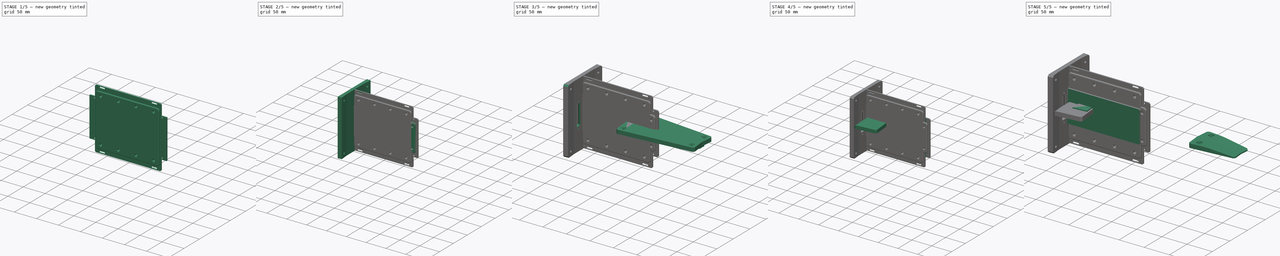
[diagram: build sequence overview — one tinted view per stage of 5, left to right]
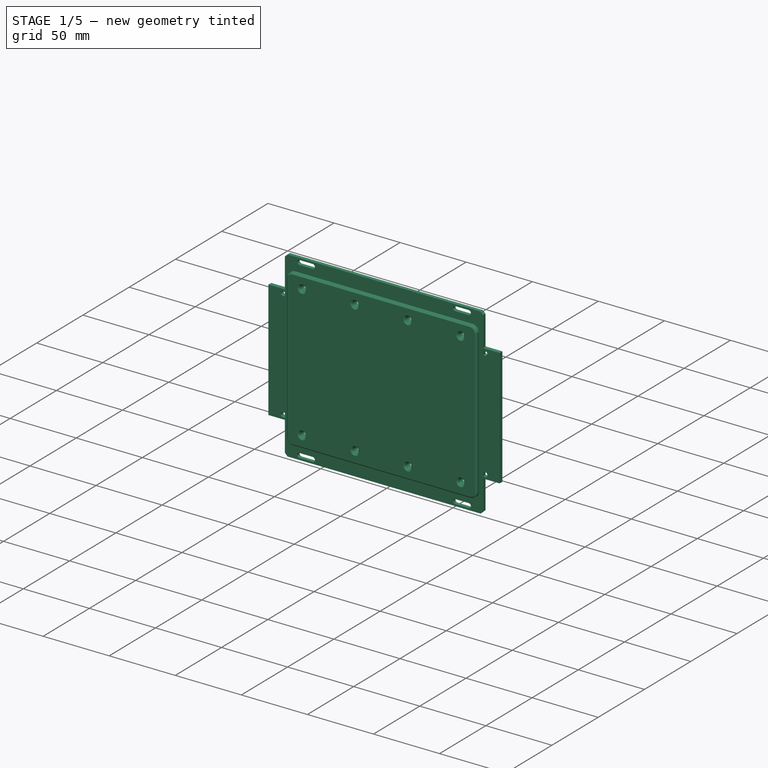
[diagram: stage 1 of 5 — iso view after this stage's code; geometry added in this stage tinted green]
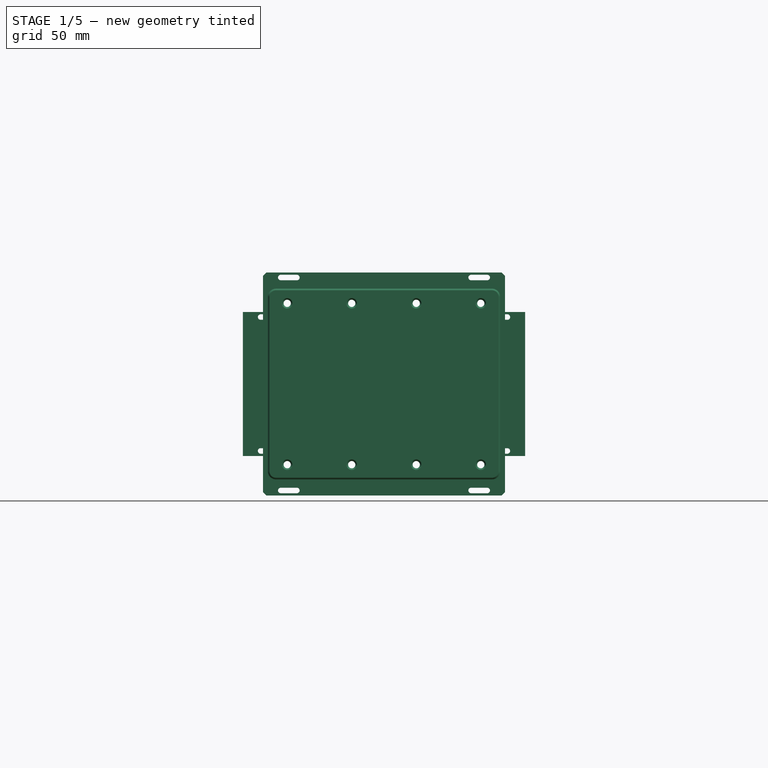
[diagram: stage 1 of 5 — front view after this stage's code; geometry added in this stage tinted green]
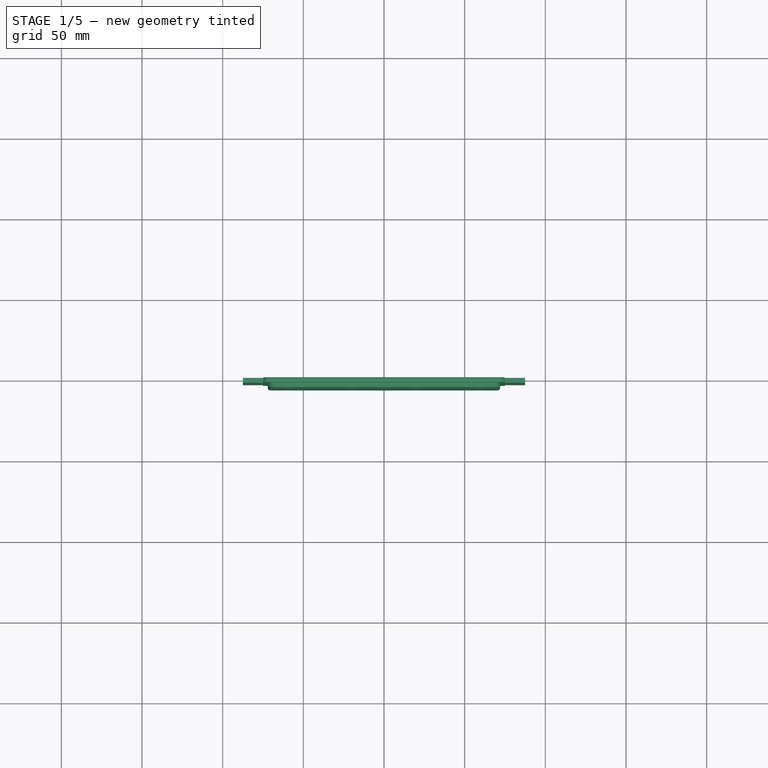
[diagram: stage 1 of 5 — top view after this stage's code; geometry added in this stage tinted green]
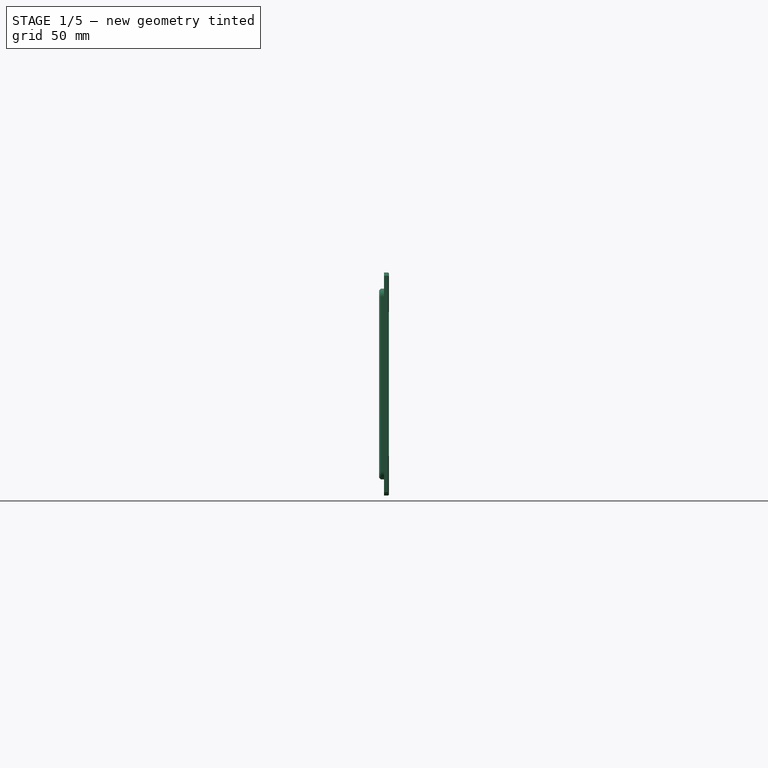
[diagram: stage 1 of 5 — right view after this stage's code; geometry added in this stage tinted green]
FCSTD DOCUMENT  (FreeCAD 1.2R20260204 (Git shallow))
Label: RC-Robot-carters
License: All rights reserved
LicenseURL: https://en.wikipedia.org/wiki/All_rights_reserved
objects: Sketcher::SketchObject×30, PartDesign::Chamfer×19, PartDesign::Pad×17, App::Point×15, PartDesign::Pocket×14, PartDesign::Mirrored×11, PartDesign::Body×11, PartDesign::SubShapeBinder×9, PartDesign::Fillet×6, App::Part×4, App::Link×2, PartDesign::ShapeBinder×2, Part::Cut×1
note: 273 computed .brp shape members not serialized (recipe doc carries the construction recipe); baked Part::Feature solids carry a one-line shape summary decoded from their .brp
EXTERNAL_REF file=../RC-Robot-parts.FCStd obj=Sketch
EXTERNAL_REF file=../electrical-parts/support-power-switch.FCStd obj=Body

FEATURE [App::Part] Part003  label="rear-carter"
  Group = -> [Body007,Body008,Cut]
  Origin = -> Origin022
FEATURE [App::Point] Origin027  label="Origine027"
  Role = Origin
FEATURE [Sketcher::SketchObject] Sketch022
  ArcFitTolerance = 1e-06
  AttachmentSupport = -> [Origin026]
  ExternalTypes = [0]
  FullyConstrained = true
  MakeInternals = false
  MapMode = 5
  Placement = pos=(0,0,0) rot=(1,0,0;1.5708rad)
  sketch-geometry (13):
    g0: LineSegment [constr] StartX=-87.5 StartY=-45 StartZ=0 EndX=87.5 EndY=-45 EndZ=0
    g1: LineSegment [constr] StartX=87.5 StartY=-45 StartZ=0 EndX=87.5 EndY=45 EndZ=0
    g2: LineSegment [constr] StartX=87.5 StartY=45 StartZ=0 EndX=-87.5 EndY=45 EndZ=0
    g3: LineSegment [constr] StartX=-87.5 StartY=45 StartZ=0 EndX=-87.5 EndY=-45 EndZ=0
    g4: GeomPoint [constr] X=0 Y=0 Z=0
    g5: LineSegment [constr] StartX=-87.5 StartY=-44.6 StartZ=0 EndX=87.5 EndY=-44.6 EndZ=0
    g6: LineSegment StartX=87.5 StartY=-44.6 StartZ=0 EndX=87.5 EndY=44.6 EndZ=0
    g7: LineSegment [constr] StartX=87.5 StartY=44.6 StartZ=0 EndX=-87.5 EndY=44.6 EndZ=0
    g8: LineSegment [constr] StartX=-87.5 StartY=44.6 StartZ=0 EndX=-87.5 EndY=-44.6 EndZ=0
    g9: GeomPoint [constr] X=0 Y=0 Z=0
    g10: LineSegment StartX=-2e-15 StartY=-44.6 StartZ=0 EndX=-2e-15 EndY=44.6 EndZ=0
    g11: LineSegment StartX=-2e-15 StartY=44.6 StartZ=0 EndX=87.5 EndY=44.6 EndZ=0
    g12: LineSegment StartX=-2e-15 StartY=-44.6 StartZ=0 EndX=87.5 EndY=-44.6 EndZ=0
  constraints (30):
    c: Coincident(g0,g1)
    c: Coincident(g1,g2)
    c: Coincident(g2,g3)
    c: Coincident(g3,g0)
    c: Horizontal(g0)
    c: Horizontal(g2)
    c: Vertical(g1)
    c: Vertical(g3)
    c: Symmetric(g2,g0,g4)
    c: Coincident(g4,g-1)
    c: DistanceX(g2,g2) = 175
    c: DistanceY(g1,g1) = 90
    c: Coincident(g5,g6)
    c: Coincident(g6,g7)
    c: Coincident(g7,g8)
    c: Coincident(g8,g5)
    c: Horizontal(g5)
    c: Horizontal(g7)
    c: Vertical(g6)
    c: Vertical(g8)
    c: Symmetric(g7,g5,g9)
    c: Coincident(g9,g4)
    c: PointOnObject(g6,g1)
    c: Distance(g6,g1) = 0.4
    c: Symmetric(g5,g5,g10)
    c: Symmetric(g7,g7,g10)
    c: Coincident(g11,g10)
    c: Coincident(g11,g6)
    c: Coincident(g12,g10)
    c: Coincident(g12,g5)
FEATURE [PartDesign::Pad] Pad013
  Direction = (0,-1,2e-16)
  Length = 3
  Length2 = 10
  Profile = -> Sketch022
  ReferenceAxis = -> Sketch022 [N_Axis]
  Refine = true
  SideType = 0
  Suppressed = false
  Type = 0
  Type2 = 0
FEATURE [Sketcher::SketchObject] Sketch023
  ArcFitTolerance = 1e-06
  AttachmentSupport = -> [Origin026]
  ExternalGeometry = -> [Pad013]
  ExternalTypes = [0,0]
  FullyConstrained = true
  MakeInternals = false
  MapMode = 5
  Placement = pos=(0,0,0) rot=(1,0,0;1.5708rad)
  sketch-geometry (6):
    g0: ArcOfCircle CenterX=76.5 CenterY=41.5 CenterZ=0 NormalX=0 NormalY=0 NormalZ=1 AngleXU=0 Radius=1.7 StartAngle=4.71239 EndAngle=7.85398
    g1: ArcOfCircle CenterX=66.5 CenterY=41.5 CenterZ=0 NormalX=0 NormalY=0 NormalZ=1 AngleXU=0 Radius=1.7 StartAngle=1.5708 EndAngle=4.71239
    g2: LineSegment StartX=76.5 StartY=39.8 StartZ=0 EndX=66.5 EndY=39.8 EndZ=0
    g3: LineSegment StartX=76.5 StartY=43.2 StartZ=0 EndX=66.5 EndY=43.2 EndZ=0
    g4: LineSegment [constr] StartX=66.5 StartY=41.5 StartZ=0 EndX=76.5 EndY=41.5 EndZ=0
    g5: GeomPoint [constr] X=71.5 Y=41.5 Z=0
  constraints (13):
    c: Tangent(g0,g2) = 1.5708
    c: Tangent(g0,g3) = -1.5708
    c: Tangent(g1,g2) = 1.5708
    c: Tangent(g1,g3) = -1.5708
    c: Equal(g0,g1)
    c: Horizontal(g3)
    c: DistanceX(g1,g0) = 10
    c: Radius(g0) = 1.7
    c: DistanceY(g-1,g0) = 41.5
    c: Coincident(g4,g1)
    c: Coincident(g4,g0)
    c: Symmetric(g4,g4,g5)
    c: Distance(g5,g-3) = 16
FEATURE [PartDesign::Pocket] Pocket010
  BaseFeature = -> Pad013
  Direction = (0,1,-2e-16)
  Length = 5
  Length2 = 5
  Profile = -> Sketch023
  ReferenceAxis = -> Sketch023 [N_Axis]
  Refine = true
  Reversed = true
  SideType = 0
  Suppressed = false
  Type = 0
  Type2 = 0
FEATURE [PartDesign::Mirrored] Mirrored008
  BaseFeature = -> Pocket010
  MirrorPlane = -> XY_Plane013
  Originals = -> [Pocket010]
  Refine = true
  Suppressed = false
  TransformMode = 0
FEATURE [PartDesign::Mirrored] Mirrored009
  BaseFeature = -> Mirrored008
  MirrorPlane = -> YZ_Plane013
  Refine = true
  Suppressed = false
  TransformMode = 1
FEATURE [PartDesign::Body] Body009  label="top-carter-core001"
  AllowCompound = true
  Group = -> [Sketch022,Pad013,Sketch023,Pocket010,Mirrored008,Mirrored009,Chamfer013,Sketch025,Pad015,Fillet004,Sketch026,Pocket011,Chamfer014,Chamfer015]
  Origin = -> Origin026
  Tip = -> Chamfer015
FEATURE [App::Point] Origin029  label="Origine029"
  Role = Origin
FEATURE [Sketcher::SketchObject] Sketch027
  ArcFitTolerance = 1e-06
  AttachmentSupport = -> [Origin028]
  ExternalTypes = [0]
  FullyConstrained = true
  MakeInternals = false
  MapMode = 5
  Placement = pos=(0,0,0) rot=(1,0,0;1.5708rad)
  sketch-geometry (13):
    g0: LineSegment [constr] StartX=-75 StartY=-69.5 StartZ=0 EndX=75 EndY=-69.5 EndZ=0
    g1: LineSegment [constr] StartX=75 StartY=-69.5 StartZ=0 EndX=75 EndY=69.5 EndZ=0
    g2: LineSegment [constr] StartX=75 StartY=69.5 StartZ=0 EndX=-75 EndY=69.5 EndZ=0
    g3: LineSegment [constr] StartX=-75 StartY=69.5 StartZ=0 EndX=-75 EndY=-69.5 EndZ=0
    g4: GeomPoint [constr] X=0 Y=0 Z=0
    g5: LineSegment [constr] StartX=-75 StartY=-69.1 StartZ=0 EndX=75 EndY=-69.1 EndZ=0
    g6: LineSegment StartX=75 StartY=-69.1 StartZ=0 EndX=75 EndY=69.1 EndZ=0
    g7: LineSegment [constr] StartX=75 StartY=69.1 StartZ=0 EndX=-75 EndY=69.1 EndZ=0
    g8: LineSegment [constr] StartX=-75 StartY=69.1 StartZ=0 EndX=-75 EndY=-69.1 EndZ=0
    g9: GeomPoint [constr] X=0 Y=0 Z=0
    g10: LineSegment StartX=3.7e-15 StartY=-69.1 StartZ=0 EndX=3.7e-15 EndY=69.1 EndZ=0
    g11: LineSegment StartX=3.7e-15 StartY=69.1 StartZ=0 EndX=75 EndY=69.1 EndZ=0
    g12: LineSegment StartX=3.7e-15 StartY=-69.1 StartZ=0 EndX=75 EndY=-69.1 EndZ=0
  constraints (30):
    c: Coincident(g0,g1)
    c: Coincident(g1,g2)
    c: Coincident(g2,g3)
    c: Coincident(g3,g0)
    c: Horizontal(g0)
    c: Horizontal(g2)
    c: Vertical(g1)
    c: Vertical(g3)
    c: Symmetric(g2,g0,g4)
    c: Coincident(g4,g-1)
    c: DistanceX(g2,g2) = 150
    c: DistanceY(g1,g1) = 139
    c: Coincident(g5,g6)
    c: Coincident(g6,g7)
    c: Coincident(g7,g8)
    c: Coincident(g8,g5)
    c: Horizontal(g5)
    c: Horizontal(g7)
    c: Vertical(g6)
    c: Vertical(g8)
    c: Symmetric(g7,g5,g9)
    c: Coincident(g9,g4)
    c: PointOnObject(g6,g1)
    c: Distance(g6,g1) = 0.4
    c: Symmetric(g5,g5,g10)
    c: Symmetric(g7,g7,g10)
    c: Coincident(g11,g10)
    c: Coincident(g11,g6)
    c: Coincident(g12,g10)
    c: Coincident(g12,g5)
FEATURE [PartDesign::Pad] Pad016
  Direction = (0,-1,2e-16)
  Length = 3
  Length2 = 10
  Profile = -> Sketch027
  ReferenceAxis = -> Sketch027 [N_Axis]
  Refine = true
  SideType = 0
  Suppressed = false
  Type = 0
  Type2 = 0
FEATURE [Sketcher::SketchObject] Sketch028
  ArcFitTolerance = 1e-06
  AttachmentSupport = -> [Origin028]
  ExternalGeometry = -> [Pad016]
  ExternalTypes = [0,0]
  FullyConstrained = true
  MakeInternals = false
  MapMode = 5
  Placement = pos=(0,0,0) rot=(1,0,0;1.5708rad)
  sketch-geometry (6):
    g0: ArcOfCircle CenterX=64 CenterY=66 CenterZ=0 NormalX=0 NormalY=0 NormalZ=1 AngleXU=0 Radius=1.7 StartAngle=4.71239 EndAngle=7.85398
    g1: ArcOfCircle CenterX=54 CenterY=66 CenterZ=0 NormalX=0 NormalY=0 NormalZ=1 AngleXU=0 Radius=1.7 StartAngle=1.5708 EndAngle=4.71239
    g2: LineSegment StartX=64 StartY=64.3 StartZ=0 EndX=54 EndY=64.3 EndZ=0
    g3: LineSegment StartX=64 StartY=67.7 StartZ=0 EndX=54 EndY=67.7 EndZ=0
    g4: LineSegment [constr] StartX=54 StartY=66 StartZ=0 EndX=64 EndY=66 EndZ=0
    g5: GeomPoint [constr] X=59 Y=66 Z=0
  constraints (13):
    c: Tangent(g0,g2) = 1.5708
    c: Tangent(g0,g3) = -1.5708
    c: Tangent(g1,g2) = 1.5708
    c: Tangent(g1,g3) = -1.5708
    c: Equal(g0,g1)
    c: Horizontal(g3)
    c: DistanceX(g1,g0) = 10
    c: Radius(g0) = 1.7
    c: Coincident(g4,g1)
    c: Coincident(g4,g0)
    c: Symmetric(g4,g4,g5)
    c: Distance(g5,g-3) = 16
    c: Distance(g-4,g4) = 3.1
FEATURE [PartDesign::Pocket] Pocket012
  BaseFeature = -> Pad016
  Direction = (0,1,-2e-16)
  Length = 5
  Length2 = 5
  Profile = -> Sketch028
  ReferenceAxis = -> Sketch028 [N_Axis]
  Refine = true
  Reversed = true
  SideType = 0
  Suppressed = false
  Type = 0
  Type2 = 0
FEATURE [PartDesign::Mirrored] Mirrored010
  BaseFeature = -> Pocket012
  MirrorPlane = -> XY_Plane014
  Originals = -> [Pocket012]
  Refine = true
  Suppressed = false
  TransformMode = 0
FEATURE [PartDesign::Mirrored] Mirrored011
  BaseFeature = -> Mirrored010
  MirrorPlane = -> YZ_Plane014
  Refine = true
  Suppressed = false
  TransformMode = 1
FEATURE [PartDesign::Chamfer] Chamfer016
  Angle = 45
  Base = -> Mirrored011 [Edge6,Edge1,Edge8,Edge2]
  BaseFeature = -> Mirrored011
  ChamferType = 0
  FlipDirection = false
  Refine = true
  Size = 2
  Size2 = 1
  SupportTransform = false
  Suppressed = false
  UseAllEdges = false
FEATURE [Sketcher::SketchObject] Sketch029
  ArcFitTolerance = 1e-06
  AttachmentSupport = -> [Chamfer016]
  ExternalGeometry = -> [Chamfer016]
  ExternalTypes = [0,0]
  FullyConstrained = true
  MakeInternals = false
  MapMode = 5
  Placement = pos=(0,-3,7e-16) rot=(1,0,0;1.5708rad)
  sketch-geometry (5):
    g0: LineSegment StartX=-72 StartY=-59.1 StartZ=0 EndX=72 EndY=-59.1 EndZ=0
    g1: LineSegment StartX=72 StartY=-59.1 StartZ=0 EndX=72 EndY=59.1 EndZ=0
    g2: LineSegment StartX=72 StartY=59.1 StartZ=0 EndX=-72 EndY=59.1 EndZ=0
    g3: LineSegment StartX=-72 StartY=59.1 StartZ=0 EndX=-72 EndY=-59.1 EndZ=0
    g4: GeomPoint [constr] X=0 Y=0 Z=0
  constraints (12):
    c: Coincident(g0,g1)
    c: Coincident(g1,g2)
    c: Coincident(g2,g3)
    c: Coincident(g3,g0)
    c: Horizontal(g0)
    c: Horizontal(g2)
    c: Vertical(g1)
    c: Vertical(g3)
    c: Symmetric(g2,g0,g4)
    c: Coincident(g4,g-1)
    c: Distance(g-3,g2) = 10
    c: Distance(g-4,g3) = 3
FEATURE [PartDesign::Pad] Pad017
  BaseFeature = -> Chamfer016
  Direction = (0,-1,2e-16)
  Length = 3
  Length2 = 10
  Profile = -> Sketch029
  ReferenceAxis = -> Sketch029 [N_Axis]
  Refine = true
  SideType = 0
  Suppressed = false
  Type = 0
  Type2 = 0
FEATURE [PartDesign::Fillet] Fillet005
  Base = -> Pad017 [Edge78,Edge80,Edge77,Edge82]
  BaseFeature = -> Pad017
  Radius = 5
  Refine = true
  SupportTransform = false
  Suppressed = false
  UseAllEdges = false
FEATURE [Sketcher::SketchObject] Sketch030
  ArcFitTolerance = 1e-06
  AttachmentSupport = -> [Fillet005]
  ExternalGeometry = -> [Fillet005]
  ExternalTypes = [0,0]
  FullyConstrained = true
  MakeInternals = true
  MapMode = 5
  Placement = pos=(0,-6,1.4e-15) rot=(1,0,0;1.5708rad)
  sketch-geometry (19):
    g0: LineSegment [constr] StartX=-60 StartY=50 StartZ=0 EndX=-60 EndY=-50 EndZ=0
    g1: LineSegment [constr] StartX=-60 StartY=-50 StartZ=0 EndX=-20 EndY=-50 EndZ=0
    g2: LineSegment [constr] StartX=-20 StartY=-50 StartZ=0 EndX=-20 EndY=50 EndZ=0
    g3: LineSegment [constr] StartX=-20 StartY=50 StartZ=0 EndX=-60 EndY=50 EndZ=0
    g4: GeomPoint [constr] X=-40 Y=0 Z=0
    g5: LineSegment [constr] StartX=20 StartY=50 StartZ=0 EndX=20 EndY=-50 EndZ=0
    g6: LineSegment [constr] StartX=20 StartY=-50 StartZ=0 EndX=60 EndY=-50 EndZ=0
    g7: LineSegment [constr] StartX=60 StartY=-50 StartZ=0 EndX=60 EndY=50 EndZ=0
    g8: LineSegment [constr] StartX=60 StartY=50 StartZ=0 EndX=20 EndY=50 EndZ=0
    g9: GeomPoint [constr] X=40 Y=0 Z=0
    g10: LineSegment [constr] StartX=-20 StartY=50 StartZ=0 EndX=20 EndY=50 EndZ=0
    g11: Circle CenterX=-60 CenterY=50 CenterZ=0 NormalX=0 NormalY=0 NormalZ=1 AngleXU=0 Radius=2.25
    g12: Circle CenterX=-20 CenterY=50 CenterZ=0 NormalX=0 NormalY=0 NormalZ=1 AngleXU=0 Radius=2.25
    g13: Circle CenterX=20 CenterY=50 CenterZ=0 NormalX=0 NormalY=0 NormalZ=1 AngleXU=0 Radius=2.25
    g14: Circle CenterX=60 CenterY=50 CenterZ=0 NormalX=0 NormalY=0 NormalZ=1 AngleXU=0 Radius=2.25
    g15: Circle CenterX=60 CenterY=-50 CenterZ=0 NormalX=0 NormalY=0 NormalZ=1 AngleXU=0 Radius=2.25
    g16: Circle CenterX=20 CenterY=-50 CenterZ=0 NormalX=0 NormalY=0 NormalZ=1 AngleXU=0 Radius=2.25
    g17: Circle CenterX=-20 CenterY=-50 CenterZ=0 NormalX=0 NormalY=0 NormalZ=1 AngleXU=0 Radius=2.25
    g18: Circle CenterX=-60 CenterY=-50 CenterZ=0 NormalX=0 NormalY=0 NormalZ=1 AngleXU=0 Radius=2.25
  constraints (43):
    c: Coincident(g0,g1)
    c: Coincident(g1,g2)
    c: Coincident(g2,g3)
    c: Coincident(g3,g0)
    c: Vertical(g0)
    c: Vertical(g2)
    c: Horizontal(g1)
    c: Horizontal(g3)
    c: Symmetric(g2,g0,g4)
    c: PointOnObject(g4,g-1)
    c: Coincident(g5,g6)
    c: Coincident(g6,g7)
    c: Coincident(g7,g8)
    c: Coincident(g8,g5)
    c: Vertical(g5)
    c: Vertical(g7)
    c: Horizontal(g6)
    c: Horizontal(g8)
    c: Symmetric(g7,g5,g9)
    c: PointOnObject(g9,g-1)
    c: Symmetric(g2,g5,g-2)
    c: Coincident(g10,g2)
    c: Coincident(g10,g5)
    c: Equal(g10,g8)
    c: DistanceY(g7,g7) = 100
    c: Coincident(g11,g0)
    c: Coincident(g12,g2)
    c: Coincident(g13,g5)
    c: Coincident(g14,g7)
    c: Coincident(g15,g6)
    c: Coincident(g16,g5)
    c: Coincident(g17,g1)
    c: Coincident(g18,g0)
    c: Equal(g18,g11)
    c: Equal(g11,g12)
    c: Equal(g12,g17)
    c: Equal(g17,g13)
    c: Equal(g13,g16)
    c: Equal(g16,g15)
    c: Equal(g15,g14)
    c: Diameter(g14) = 4.5
    c: Equal(g3,g10)
    c: DistanceX(g8,g8) = 40
FEATURE [PartDesign::Pocket] Pocket013
  BaseFeature = -> Fillet005
  Direction = (0,1,-2e-16)
  Length = 7
  Length2 = 5
  Profile = -> Sketch030
  ReferenceAxis = -> Sketch030 [N_Axis]
  Refine = true
  SideType = 0
  Suppressed = false
  Type = 0
  Type2 = 0
FEATURE [PartDesign::Chamfer] Chamfer017
  Angle = 45
  Base = -> Pocket013 [Face34]
  BaseFeature = -> Pocket013
  ChamferType = 0
  FlipDirection = false
  Refine = true
  Size = 1
  Size2 = 1
  SupportTransform = false
  Suppressed = false
  UseAllEdges = false
FEATURE [PartDesign::Chamfer] Chamfer018
  Angle = 45
  Base = -> Chamfer017 [Face51]
  BaseFeature = -> Chamfer017
  ChamferType = 0
  FlipDirection = false
  Refine = true
  Size = 0.4
  Size2 = 1
  SupportTransform = false
  Suppressed = false
  UseAllEdges = false
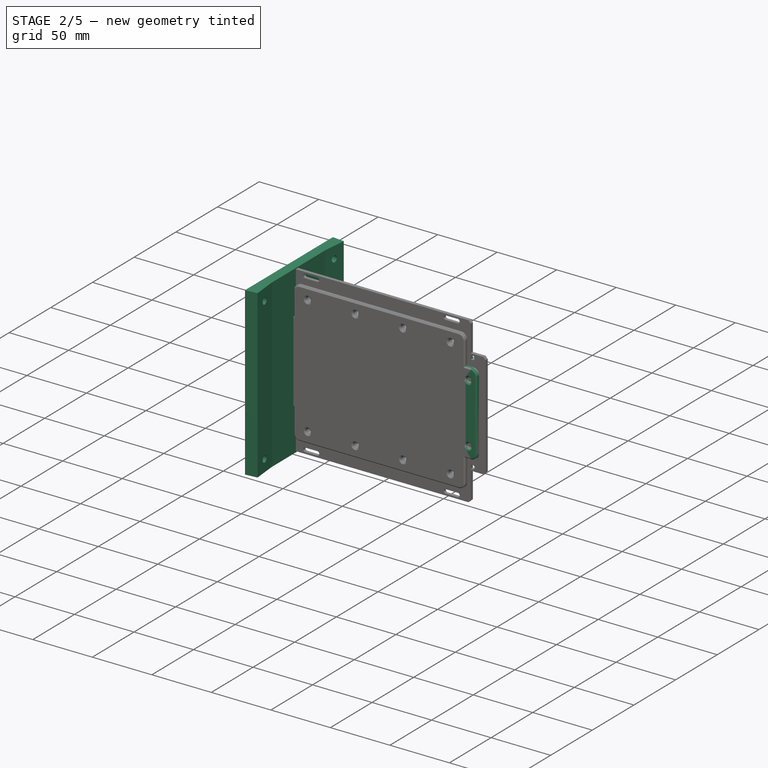
[diagram: stage 2 of 5 — iso view after this stage's code; geometry added in this stage tinted green]
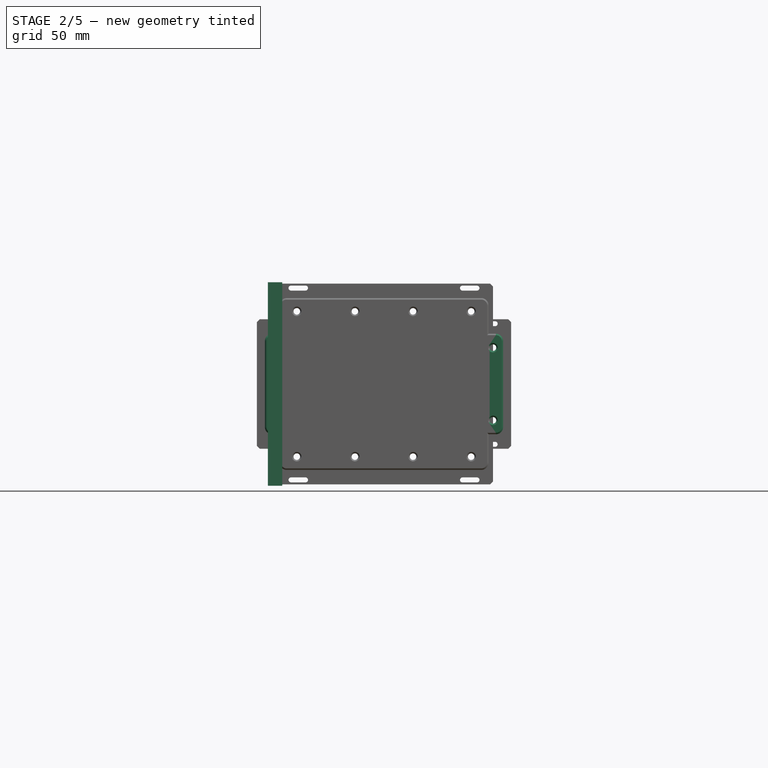
[diagram: stage 2 of 5 — front view after this stage's code; geometry added in this stage tinted green]
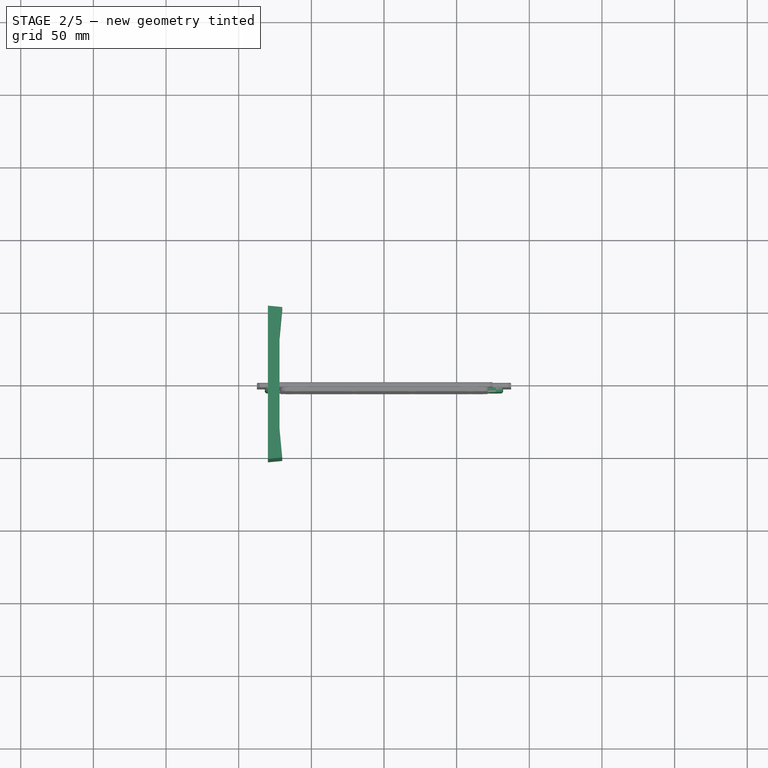
[diagram: stage 2 of 5 — top view after this stage's code; geometry added in this stage tinted green]
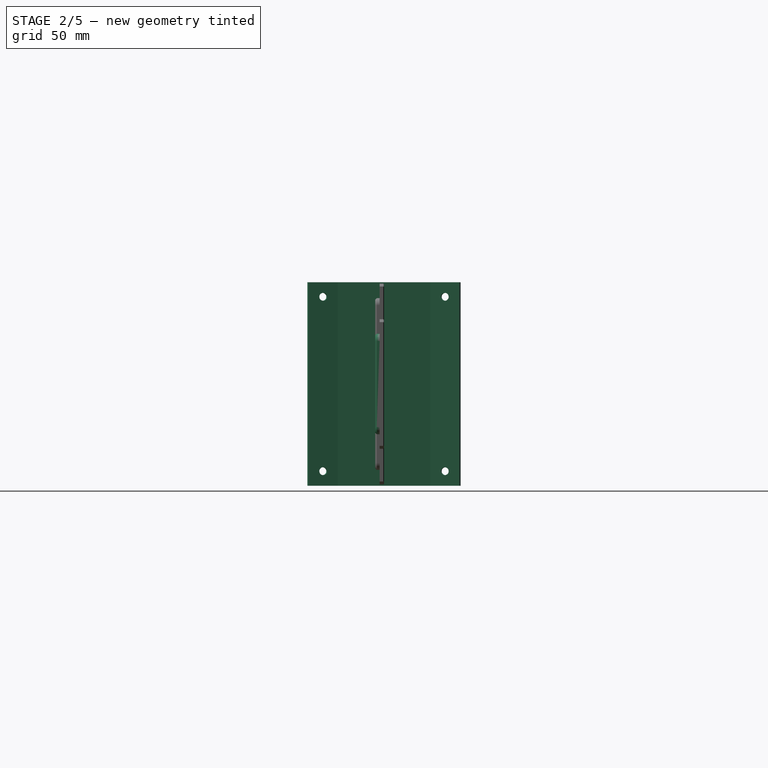
[diagram: stage 2 of 5 — right view after this stage's code; geometry added in this stage tinted green]
FEATURE [PartDesign::Body] Body003  label="lateral-rear-carter-core"
  AllowCompound = true
  Group = -> [Binder004,Binder005,Sketch006,Pad004,Chamfer005,Fillet001,Mirrored002,Sketch007,Pocket002,Sketch008,Pocket003,Sketch009,Pad005,Pocket005]
  Origin = -> Origin008
  Tip = -> Pocket005
FEATURE [App::Part] Part001  label="lateral-rear-carter"
  Group = -> [Body003,Body004]
  Origin = -> Origin012
FEATURE [App::Point] Origin021  label="Origine020"
  Role = Origin
FEATURE [PartDesign::SubShapeBinder] Binder007
  BindCopyOnChange = 0
  BindMode = 0
  ClaimChildren = false
  Context = -> Part003 [Body007.Binder007.]
  Fuse = false
  MakeFace = true
  OffsetFill = false
  OffsetIntersection = false
  OffsetJoinType = 0
  OffsetOpenResult = false
  PartialLoad = false
  Refine = true
  Relative = true
  Support = -> [Link]
  _Version = 2
FEATURE [Sketcher::SketchObject] Sketch016
  ArcFitTolerance = 1e-06
  AttachmentSupport = -> [Origin020]
  ExternalGeometry = -> [Binder007]
  ExternalTypes = [0,0,0,0]
  FullyConstrained = true
  MakeInternals = false
  MapMode = 5
  sketch-geometry (6):
    g0: LineSegment StartX=-70.0371 StartY=-51.7842 StartZ=0 EndX=-71.9119 EndY=-31.8722 EndZ=0
    g1: LineSegment StartX=-71.9119 StartY=-31.8722 StartZ=0 EndX=-71.9119 EndY=31.8722 EndZ=0
    g2: LineSegment StartX=-71.9119 StartY=31.8722 StartZ=0 EndX=-70.0371 EndY=51.7842 EndZ=0
    g3: LineSegment StartX=-70.0371 StartY=51.7842 StartZ=0 EndX=-79.9119 EndY=52.7139 EndZ=0
    g4: LineSegment StartX=-79.9119 StartY=52.7139 StartZ=0 EndX=-79.9119 EndY=-52.7139 EndZ=0
    g5: LineSegment StartX=-70.0371 StartY=-51.7842 StartZ=0 EndX=-79.9119 EndY=-52.7139 EndZ=0
  constraints (14):
    c: Coincident(g0,g-6)
    c: Coincident(g0,g-6)
    c: Coincident(g1,g0)
    c: Coincident(g1,g-3)
    c: Coincident(g2,g1)
    c: Coincident(g2,g-4)
    c: Coincident(g3,g2)
    c: Coincident(g4,g3)
    c: Vertical(g4)
    c: Coincident(g5,g0)
    c: Coincident(g5,g4)
    c: Tangent(g5,g-5)
    c: Tangent(g-4,g3)
    c: Distance(g1,g4) = 8
FEATURE [PartDesign::Pad] Pad011
  Direction = (0,0,1)
  Length = 140
  Length2 = 10
  Profile = -> Sketch016
  ReferenceAxis = -> Sketch016 [N_Axis]
  Refine = true
  SideType = 2
  Suppressed = false
  Type = 0
  Type2 = 0
FEATURE [Sketcher::SketchObject] Sketch017
  ArcFitTolerance = 1e-06
  AttachmentSupport = -> [Pad011]
  ExternalGeometry = -> [Pad011]
  ExternalTypes = [0,0]
  FullyConstrained = true
  MakeInternals = false
  MapMode = 5
  Placement = pos=(-74.2546,-6.99155,0) rot=(0.541233,0.594587,0.594587;2.14942rad)
  sketch-geometry (3):
    g0: Circle CenterX=-34.9907 CenterY=60 CenterZ=0 NormalX=0 NormalY=0 NormalZ=1 AngleXU=0 Radius=2.7
    g1: LineSegment [constr] StartX=-34.9907 StartY=70 StartZ=0 EndX=-34.9907 EndY=-70 EndZ=0
    g2: Circle CenterX=-34.9907 CenterY=-60 CenterZ=0 NormalX=0 NormalY=0 NormalZ=1 AngleXU=0 Radius=2.7
  constraints (7):
    c: Diameter(g0) = 5.4
    c: Symmetric(g-3,g-3,g1)
    c: Symmetric(g-4,g-4,g1)
    c: PointOnObject(g0,g1)
    c: Equal(g2,g0)
    c: Symmetric(g2,g0,g-1)
    c: Distance(g0,g-3) = 10
FEATURE [PartDesign::Pocket] Pocket006
  BaseFeature = -> Pad011
  Direction = (-0.995597,-0.0937419,0)
  Length = 12
  Length2 = 5
  Profile = -> Sketch017
  ReferenceAxis = -> Sketch017 [N_Axis]
  Refine = true
  SideType = 0
  Suppressed = false
  Type = 0
  Type2 = 0
FEATURE [Sketcher::SketchObject] Sketch018
  ArcFitTolerance = 1e-06
  AttachmentOffset = pos=(0,0,-6) rot=(0,0,1;0rad)
  AttachmentSupport = -> [Pocket006]
  ExternalGeometry = -> [Pocket006]
  ExternalTypes = [0,0]
  FullyConstrained = true
  MakeInternals = false
  MapMode = 5
  Placement = pos=(-80.2282,-7.554,0) rot=(0.541233,0.594587,0.594587;2.14942rad)
  sketch-geometry (2):
    g0: Circle CenterX=-34.9907 CenterY=60 CenterZ=0 NormalX=0 NormalY=0 NormalZ=1 AngleXU=0 Radius=5
    g1: Circle CenterX=-34.9907 CenterY=-60 CenterZ=0 NormalX=0 NormalY=0 NormalZ=1 AngleXU=0 Radius=5
  constraints (4):
    c: Coincident(g0,g-3)
    c: Coincident(g1,g-4)
    c: Equal(g1,g0)
    c: Diameter(g0) = 10
FEATURE [PartDesign::Pocket] Pocket007
  BaseFeature = -> Pocket006
  Direction = (-0.995597,-0.0937419,0)
  Length = 5
  Length2 = 5
  Profile = -> Sketch018
  ReferenceAxis = -> Sketch018 [N_Axis]
  Refine = true
  SideType = 0
  Suppressed = false
  Type = 0
  Type2 = 0
FEATURE [PartDesign::Mirrored] Mirrored006
  BaseFeature = -> Pocket007
  MirrorPlane = -> XZ_Plane010
  Originals = -> [Pocket006,Pocket007]
  Refine = true
  Suppressed = false
  TransformMode = 0
FEATURE [PartDesign::Body] Body007  label="rear-carter-core"
  AllowCompound = true
  Group = -> [Binder007,Sketch016,Pad011,Sketch017,Pocket006,Sketch018,Pocket007,Mirrored006,Chamfer008,Sketch019,Pocket008,Chamfer009,Chamfer010,Binder008,Sketch020,Pocket009,Chamfer011,Chamfer012]
  Origin = -> Origin020
  Tip = -> Chamfer012
FEATURE [App::Point] Origin025  label="Origine024"
  Role = Origin
FEATURE [PartDesign::ShapeBinder] CopyChamfer012
  TraceSupport = false
FEATURE [Sketcher::SketchObject] Sketch021
  ArcFitTolerance = 1e-06
  AttachmentSupport = -> [CopyChamfer012]
  ExternalGeometry = -> [CopyChamfer012]
  ExternalTypes = [0,0]
  FullyConstrained = true
  MakeInternals = false
  MapMode = 5
  Placement = pos=(-79.9119,0,0) rot=(0.57735,-0.57735,-0.57735;2.0944rad)
  sketch-geometry (5):
    g0: LineSegment StartX=-29.7139 StartY=67 StartZ=0 EndX=-29.7139 EndY=37 EndZ=0
    g1: LineSegment StartX=-29.7139 StartY=37 StartZ=0 EndX=29.7139 EndY=37 EndZ=0
    g2: LineSegment StartX=29.7139 StartY=37 StartZ=0 EndX=29.7139 EndY=67 EndZ=0
    g3: LineSegment StartX=29.7139 StartY=67 StartZ=0 EndX=-29.7139 EndY=67 EndZ=0
    g4: GeomPoint [constr] X=0 Y=52 Z=0
  constraints (13):
    c: Coincident(g0,g1)
    c: Coincident(g1,g2)
    c: Coincident(g2,g3)
    c: Coincident(g3,g0)
    c: Vertical(g0)
    c: Vertical(g2)
    c: Horizontal(g1)
    c: Horizontal(g3)
    c: Symmetric(g2,g0,g4)
    c: PointOnObject(g4,g-2)
    c: Distance(g2,g-3) = 3
    c: Distance(g0,g0) = 30
    c: Distance(g-4,g0) = 23
FEATURE [PartDesign::Pad] Pad012
  Direction = (-1,0,0)
  Length = 5
  Length2 = 5
  Profile = -> Sketch021
  ReferenceAxis = -> Sketch021 [N_Axis]
  Refine = true
  Reversed = true
  SideType = 0
  Suppressed = false
  Type = 0
  Type2 = 0
FEATURE [PartDesign::Mirrored] Mirrored007
  BaseFeature = -> Pad012
  MirrorPlane = -> XY_Plane012
  Originals = -> [Pad012]
  Refine = true
  Suppressed = false
  TransformMode = 1
FEATURE [PartDesign::Fillet] Fillet003
  Base = -> Mirrored007 [Edge8,Edge5,Edge1,Edge14,Edge17,Edge2,Edge13,Edge20]
  BaseFeature = -> Mirrored007
  Radius = 3
  Refine = true
  SupportTransform = false
  Suppressed = false
  UseAllEdges = false
FEATURE [PartDesign::Chamfer] Chamfer013
  Angle = 45
  Base = -> Mirrored009 [Edge8,Edge6,Edge2,Edge1]
  BaseFeature = -> Mirrored009
  ChamferType = 0
  FlipDirection = false
  Refine = true
  Size = 2
  Size2 = 1
  SupportTransform = false
  Suppressed = false
  UseAllEdges = false
FEATURE [Sketcher::SketchObject] Sketch025
  ArcFitTolerance = 1e-06
  ExternalTypes = [0,0]
  FullyConstrained = true
  MakeInternals = false
  MapMode = 5
  Placement = pos=(0,-3,0) rot=(1,0,0;1.5708rad)
  sketch-geometry (5):
    g0: LineSegment StartX=-82 StartY=-34.6 StartZ=0 EndX=82 EndY=-34.6 EndZ=0
    g1: LineSegment StartX=82 StartY=-34.6 StartZ=0 EndX=82 EndY=34.6 EndZ=0
    g2: LineSegment StartX=82 StartY=34.6 StartZ=0 EndX=-82 EndY=34.6 EndZ=0
    g3: LineSegment StartX=-82 StartY=34.6 StartZ=0 EndX=-82 EndY=-34.6 EndZ=0
    g4: GeomPoint [constr] X=0 Y=0 Z=0
  constraints (12):
    c: Coincident(g0,g1)
    c: Coincident(g1,g2)
    c: Coincident(g2,g3)
    c: Coincident(g3,g0)
    c: Horizontal(g0)
    c: Horizontal(g2)
    c: Vertical(g1)
    c: Vertical(g3)
    c: Symmetric(g2,g0,g4)
    c: Coincident(g4,g-1)
    c: Distance(g-3,g3) = 3
    c: Distance(g-4,g2) = 10
FEATURE [PartDesign::Pad] Pad015
  BaseFeature = -> Chamfer013
  Direction = (0,-1,2e-16)
  Length = 3
  Length2 = 10
  Profile = -> Sketch025
  ReferenceAxis = -> Sketch025 [N_Axis]
  Refine = true
  SideType = 0
  Suppressed = false
  Type = 0
  Type2 = 0
FEATURE [PartDesign::Fillet] Fillet004
  Base = -> Pad015 [Edge80,Edge78,Edge82,Edge77]
  BaseFeature = -> Pad015
  Radius = 5
  Refine = true
  SupportTransform = false
  Suppressed = false
  UseAllEdges = false
FEATURE [Sketcher::SketchObject] Sketch026
  ArcFitTolerance = 1e-06
  AttachmentSupport = -> [Fillet004]
  ExternalTypes = [0]
  FullyConstrained = true
  MakeInternals = true
  MapMode = 5
  Placement = pos=(0,-6,0) rot=(1,0,0;1.5708rad)
  sketch-geometry (19):
    g0: LineSegment [constr] StartX=-75 StartY=25 StartZ=0 EndX=-75 EndY=-25 EndZ=0
    g1: LineSegment [constr] StartX=-75 StartY=-25 StartZ=0 EndX=-25 EndY=-25 EndZ=0
    g2: LineSegment [constr] StartX=-25 StartY=-25 StartZ=0 EndX=-25 EndY=25 EndZ=0
    g3: LineSegment [constr] StartX=-25 StartY=25 StartZ=0 EndX=-75 EndY=25 EndZ=0
    g4: GeomPoint [constr] X=-50 Y=0 Z=0
    g5: LineSegment [constr] StartX=25 StartY=25 StartZ=0 EndX=25 EndY=-25 EndZ=0
    g6: LineSegment [constr] StartX=25 StartY=-25 StartZ=0 EndX=75 EndY=-25 EndZ=0
    g7: LineSegment [constr] StartX=75 StartY=-25 StartZ=0 EndX=75 EndY=25 EndZ=0
    g8: LineSegment [constr] StartX=75 StartY=25 StartZ=0 EndX=25 EndY=25 EndZ=0
    g9: GeomPoint [constr] X=50 Y=0 Z=0
    g10: LineSegment [constr] StartX=-25 StartY=25 StartZ=0 EndX=25 EndY=25 EndZ=0
    g11: Circle CenterX=-75 CenterY=25 CenterZ=0 NormalX=0 NormalY=0 NormalZ=1 AngleXU=0 Radius=2.25
    g12: Circle CenterX=-25 CenterY=25 CenterZ=0 NormalX=0 NormalY=0 NormalZ=1 AngleXU=0 Radius=2.25
    g13: Circle CenterX=25 CenterY=25 CenterZ=0 NormalX=0 NormalY=0 NormalZ=1 AngleXU=0 Radius=2.25
    g14: Circle CenterX=75 CenterY=25 CenterZ=0 NormalX=0 NormalY=0 NormalZ=1 AngleXU=0 Radius=2.25
    g15: Circle CenterX=75 CenterY=-25 CenterZ=0 NormalX=0 NormalY=0 NormalZ=1 AngleXU=0 Radius=2.25
    g16: Circle CenterX=25 CenterY=-25 CenterZ=0 NormalX=0 NormalY=0 NormalZ=1 AngleXU=0 Radius=2.25
    g17: Circle CenterX=-25 CenterY=-25 CenterZ=0 NormalX=0 NormalY=0 NormalZ=1 AngleXU=0 Radius=2.25
    g18: Circle CenterX=-75 CenterY=-25 CenterZ=0 NormalX=0 NormalY=0 NormalZ=1 AngleXU=0 Radius=2.25
  constraints (43):
    c: Coincident(g0,g1)
    c: Coincident(g1,g2)
    c: Coincident(g2,g3)
    c: Coincident(g3,g0)
    c: Vertical(g0)
    c: Vertical(g2)
    c: Horizontal(g1)
    c: Horizontal(g3)
    c: Symmetric(g2,g0,g4)
    c: PointOnObject(g4,g-1)
    c: Coincident(g5,g6)
    c: Coincident(g6,g7)
    c: Coincident(g7,g8)
    c: Coincident(g8,g5)
    c: Vertical(g5)
    c: Vertical(g7)
    c: Horizontal(g6)
    c: Horizontal(g8)
    c: Symmetric(g7,g5,g9)
    c: PointOnObject(g9,g-1)
    c: Symmetric(g2,g5,g-2)
    c: Equal(g3,g5)
    c: Equal(g5,g8)
    c: Coincident(g10,g2)
    c: Coincident(g10,g5)
    c: Equal(g10,g8)
    c: DistanceY(g7,g7) = 50
    c: Coincident(g11,g0)
    c: Coincident(g12,g2)
    c: Coincident(g13,g5)
    c: Coincident(g14,g7)
    c: Coincident(g15,g6)
    c: Coincident(g16,g5)
    c: Coincident(g17,g1)
    c: Coincident(g18,g0)
    c: Equal(g18,g11)
    c: Equal(g11,g12)
    c: Equal(g12,g17)
    c: Equal(g17,g13)
    c: Equal(g13,g16)
    c: Equal(g16,g15)
    c: Equal(g15,g14)
    c: Diameter(g14) = 4.5
FEATURE [PartDesign::Pocket] Pocket011
  BaseFeature = -> Fillet004
  Direction = (0,1,-2e-16)
  Length = 7
  Length2 = 5
  Profile = -> Sketch026
  ReferenceAxis = -> Sketch026 [N_Axis]
  Refine = true
  SideType = 0
  Suppressed = false
  Type = 0
  Type2 = 0
FEATURE [PartDesign::Chamfer] Chamfer014
  Angle = 45
  Base = -> Pocket011 [Face34]
  BaseFeature = -> Pocket011
  ChamferType = 0
  FlipDirection = false
  Refine = true
  Size = 1
  Size2 = 1
  SupportTransform = false
  Suppressed = false
  UseAllEdges = false
FEATURE [PartDesign::Chamfer] Chamfer015
  Angle = 45
  Base = -> Chamfer014 [Face51]
  BaseFeature = -> Chamfer014
  ChamferType = 0
  FlipDirection = false
  Refine = true
  Size = 0.4
  Size2 = 1
  SupportTransform = false
  Suppressed = false
  UseAllEdges = false
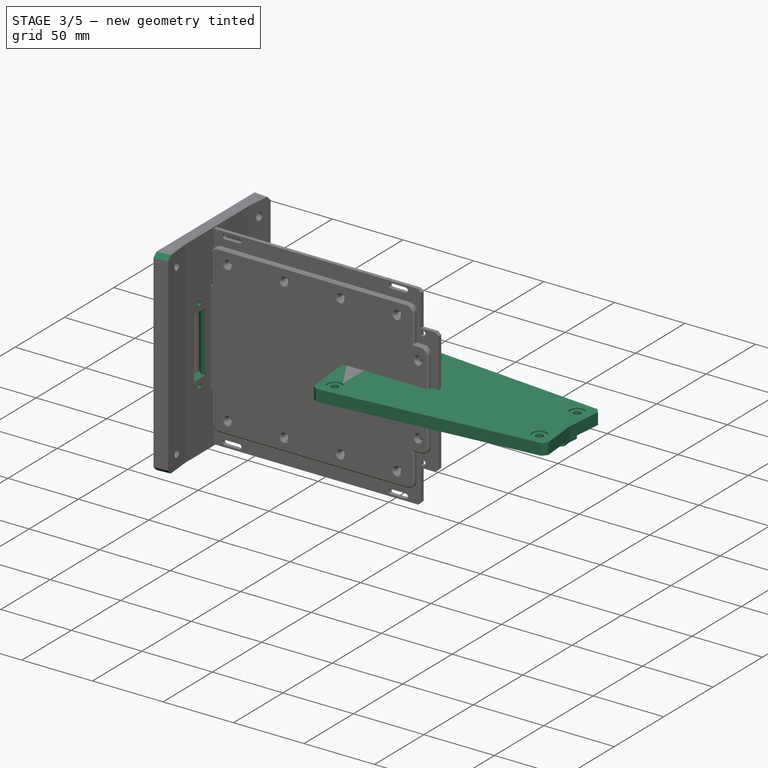
[diagram: stage 3 of 5 — iso view after this stage's code; geometry added in this stage tinted green]
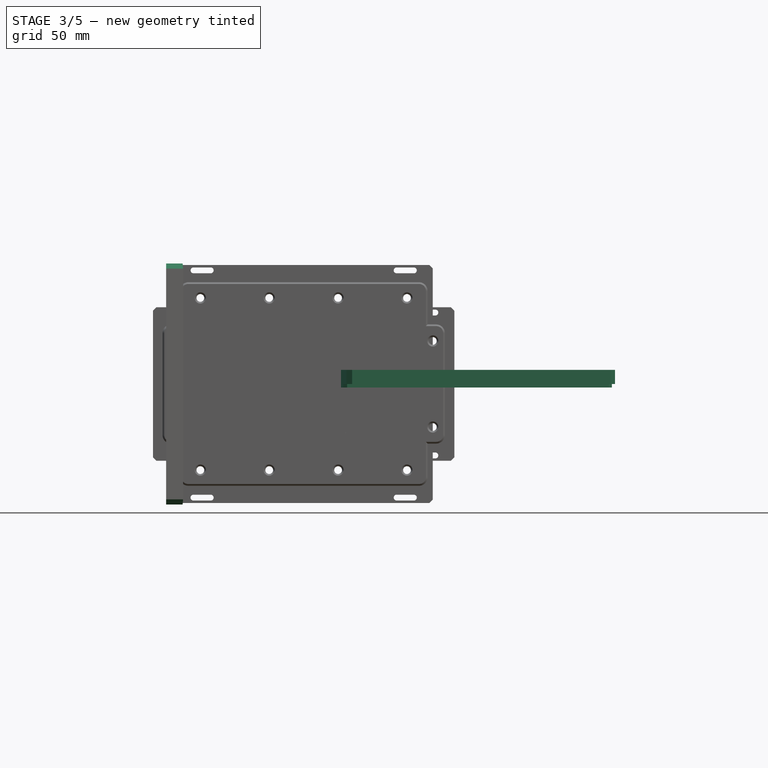
[diagram: stage 3 of 5 — front view after this stage's code; geometry added in this stage tinted green]
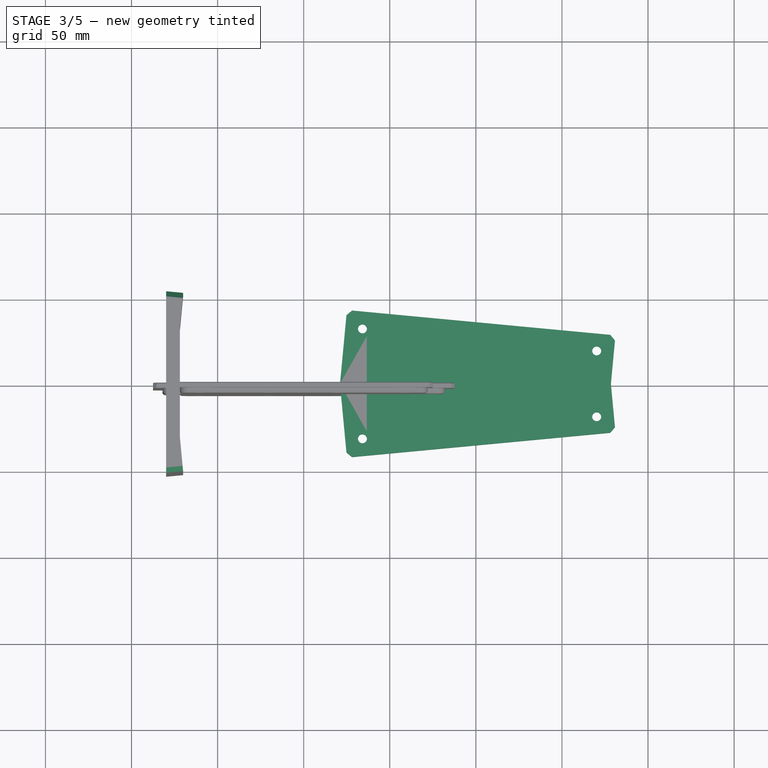
[diagram: stage 3 of 5 — top view after this stage's code; geometry added in this stage tinted green]
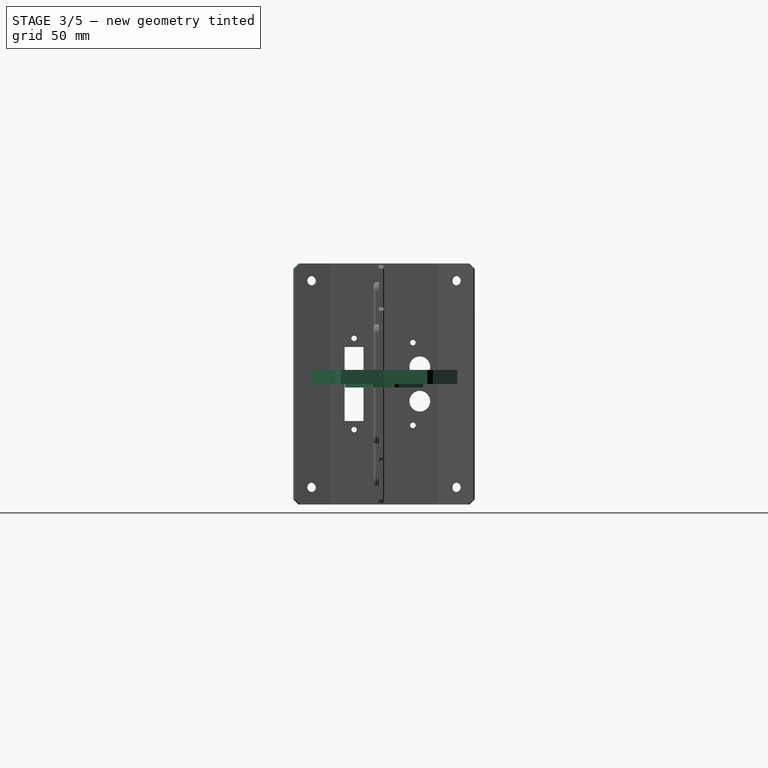
[diagram: stage 3 of 5 — right view after this stage's code; geometry added in this stage tinted green]
FEATURE [App::Link] Link  label="Squelette"
  LinkedObject = -> <external ../RC-Robot-parts.FCStd>#Sketch
FEATURE [App::Point] Origin001  label="Origine"
  Role = Origin
FEATURE [PartDesign::SubShapeBinder] Binder
  BindCopyOnChange = 0
  BindMode = 0
  ClaimChildren = false
  Context = -> Body [Binder.]
  Fuse = false
  MakeFace = true
  OffsetFill = false
  OffsetIntersection = false
  OffsetJoinType = 0
  OffsetOpenResult = false
  PartialLoad = false
  Refine = true
  Relative = true
  Support = -> [Link]
  _Version = 2
FEATURE [Sketcher::SketchObject] Sketch
  ArcFitTolerance = 1e-06
  AttachmentSupport = -> [Origin]
  ExternalGeometry = -> [Binder]
  ExternalTypes = [0,0,0,0,0,0]
  FullyConstrained = true
  MakeInternals = false
  MapMode = 5
  sketch-geometry (13):
    g0: LineSegment [constr] StartX=20.0885 StartY=0 StartZ=0 EndX=24.4107 EndY=45.9046 EndZ=0
    g1: LineSegment [constr] StartX=20.0885 StartY=0 StartZ=0 EndX=24.4107 EndY=-45.9046 EndZ=0
    g2: LineSegment [constr] StartX=-15.4132 StartY=49.6542 StartZ=0 EndX=-20.0885 EndY=0 EndZ=0
    g3: LineSegment [constr] StartX=-20.0885 StartY=0 StartZ=0 EndX=-15.4132 EndY=-49.6542 EndZ=0
    g4: LineSegment [constr] StartX=-70.0371 StartY=51.7842 StartZ=0 EndX=268.466 EndY=19.9119 EndZ=0
    g5: LineSegment [constr] StartX=266.591 StartY=0 StartZ=0 EndX=268.466 EndY=19.9119 EndZ=0
    g6: LineSegment StartX=25.125 StartY=42.824 StartZ=0 EndX=21.0929 EndY=0 EndZ=0
    g7: LineSegment StartX=21.0929 StartY=0 StartZ=0 EndX=178.443 EndY=0 EndZ=0
    g8: LineSegment StartX=178.443 StartY=0 StartZ=0 EndX=181.093 EndY=28.1387 EndZ=0
    g9: LineSegment StartX=181.093 StartY=28.1387 StartZ=0 EndX=25.125 EndY=42.824 EndZ=0
    g10: Circle CenterX=34.1436 CenterY=31.9306 CenterZ=0 NormalX=0 NormalY=0 NormalZ=1 AngleXU=0 Radius=2.6
    g11: Circle CenterX=170.199 CenterY=19.1201 CenterZ=0 NormalX=0 NormalY=0 NormalZ=1 AngleXU=0 Radius=2.6
    g12: LineSegment [constr] StartX=34.1436 StartY=31.9306 StartZ=0 EndX=170.199 EndY=19.1201 EndZ=0
  constraints (38):
    c: PointOnObject(g0,g-1)
    c: PointOnObject(g0,g-3)
    c: Coincident(g1,g0)
    c: PointOnObject(g1,g-4)
    c: Perpendicular(g-4,g1)
    c: Perpendicular(g-3,g0)
    c: PointOnObject(g2,g-3)
    c: Coincident(g3,g2)
    c: PointOnObject(g3,g-4)
    c: Parallel(g2,g0)
    c: Parallel(g3,g1)
    c: Symmetric(g2,g0,g-1)
    c: Distance(g2,g0) = 40
    c: Coincident(g4,g-7)
    c: Coincident(g5,g-6)
    c: Coincident(g5,g4)
    c: Parallel(g4,g-3)
    c: PointOnObject(g4,g-8)
    c: PointOnObject(g6,g4)
    c: PointOnObject(g6,g-1)
    c: Coincident(g7,g6)
    c: PointOnObject(g7,g-1)
    c: Coincident(g8,g7)
    c: PointOnObject(g8,g4)
    c: Coincident(g9,g8)
    c: Coincident(g9,g6)
    c: Parallel(g6,g0)
    c: Parallel(g8,g6)
    c: Distance(g6,g0) = 1
    c: DistanceX(g6,g8) = 160
    c: Coincident(g12,g10)
    c: Coincident(g12,g11)
    c: Parallel(g12,g9)
    c: Equal(g11,g10)
    c: Diameter(g10) = 5.2
    c: Distance(g10,g6) = 10
    c: Distance(g11,g8) = 10
    c: Distance(g9,g12) = 10
FEATURE [PartDesign::Pad] Pad
  Direction = (0,0,1)
  Length = 8.2
  Length2 = 10
  Profile = -> Sketch
  ReferenceAxis = -> Sketch [N_Axis]
  Refine = true
  SideType = 0
  Suppressed = false
  Type = 0
  Type2 = 0
FEATURE [Sketcher::SketchObject] Sketch001
  ArcFitTolerance = 1e-06
  AttachmentSupport = -> [Pad]
  ExternalGeometry = -> [Pad,Binder]
  ExternalTypes = [0,0,0,0]
  FullyConstrained = true
  MakeInternals = false
  MapMode = 5
  Placement = pos=(0,0,0) rot=(1,0,0;3.14159rad)
  sketch-geometry (4):
    g0: LineSegment StartX=21.0929 StartY=0 StartZ=0 EndX=23.2502 EndY=-22.9121 EndZ=0
    g1: LineSegment StartX=23.2502 StartY=-22.9121 StartZ=0 EndX=179.218 EndY=-8.22672 EndZ=0
    g2: LineSegment StartX=179.218 StartY=-8.22672 StartZ=0 EndX=178.443 EndY=0 EndZ=0
    g3: LineSegment StartX=178.443 StartY=0 StartZ=0 EndX=21.0929 EndY=0 EndZ=0
  constraints (10):
    c: Coincident(g0,g-3)
    c: PointOnObject(g0,g-6)
    c: Coincident(g1,g0)
    c: PointOnObject(g1,g-6)
    c: Coincident(g2,g1)
    c: Coincident(g2,g-4)
    c: Coincident(g3,g2)
    c: Coincident(g3,g0)
    c: PointOnObject(g0,g-3)
    c: PointOnObject(g1,g-4)
FEATURE [PartDesign::Pad] Pad001
  BaseFeature = -> Pad
  Direction = (0,0,-1)
  Length = 2
  Length2 = 10
  Profile = -> Sketch001
  ReferenceAxis = -> Sketch001 [N_Axis]
  Refine = true
  SideType = 0
  Suppressed = false
  Type = 0
  Type2 = 0
FEATURE [Sketcher::SketchObject] Sketch002
  ArcFitTolerance = 1e-06
  AttachmentSupport = -> [Pad001]
  ExternalGeometry = -> [Pad001]
  ExternalTypes = [0,0]
  FullyConstrained = true
  MakeInternals = false
  MapMode = 5
  Placement = pos=(0,0,8.2) rot=(0,0,1;0rad)
  sketch-geometry (2):
    g0: Circle CenterX=34.1436 CenterY=31.9306 CenterZ=0 NormalX=0 NormalY=0 NormalZ=1 AngleXU=0 Radius=5
    g1: Circle CenterX=170.199 CenterY=19.1201 CenterZ=0 NormalX=0 NormalY=0 NormalZ=1 AngleXU=0 Radius=5
  constraints (4):
    c: Coincident(g0,g-3)
    c: Coincident(g1,g-4)
    c: Equal(g0,g1)
    c: Diameter(g1) = 10
FEATURE [PartDesign::Pocket] Pocket
  BaseFeature = -> Pad001
  Direction = (0,0,-1)
  Length = 1
  Length2 = 5
  Profile = -> Sketch002
  ReferenceAxis = -> Sketch002 [N_Axis]
  Refine = true
  SideType = 0
  Suppressed = false
  Type = 0
  Type2 = 0
FEATURE [PartDesign::Chamfer] Chamfer
  Angle = 45
  Base = -> Pocket [Edge1,Edge2]
  BaseFeature = -> Pocket
  ChamferType = 0
  FlipDirection = false
  Refine = true
  Size = 3
  Size2 = 1
  SupportTransform = false
  Suppressed = false
  UseAllEdges = false
FEATURE [PartDesign::Chamfer] Chamfer001
  Angle = 45
  Base = -> Chamfer [Edge21,Edge24]
  BaseFeature = -> Chamfer
  ChamferType = 0
  FlipDirection = false
  Refine = true
  Size = 2
  Size2 = 1
  SupportTransform = false
  Suppressed = false
  UseAllEdges = false
FEATURE [PartDesign::Mirrored] Mirrored
  BaseFeature = -> Chamfer001
  MirrorPlane = -> Chamfer001 [Face13]
  Refine = true
  Suppressed = false
  TransformMode = 1
FEATURE [PartDesign::Chamfer] Chamfer008
  Angle = 45
  Base = -> Mirrored006 [Edge16,Edge12,Edge9,Edge8]
  BaseFeature = -> Mirrored006
  ChamferType = 0
  FlipDirection = false
  Refine = true
  Size = 3
  Size2 = 1
  SupportTransform = false
  Suppressed = false
  UseAllEdges = false
FEATURE [App::Link] Link001  label="support-power-switch"
  LinkPlacement = pos=(-53.9119,16.8,1.12e-14) rot=(0.57735,0.57735,0.57735;4.18879rad)
  LinkedObject = -> <external ../electrical-parts/support-power-switch.FCStd>#Body
  Placement = pos=(-53.9119,16.8,1.12e-14) rot=(0.57735,0.57735,0.57735;4.18879rad)
FEATURE [App::Point] Origin023  label="Origine022"
  Role = Origin
FEATURE [Sketcher::SketchObject] Sketch019
  ArcFitTolerance = 1e-06
  AttachmentSupport = -> [Chamfer008]
  ExternalGeometry = -> [Chamfer008]
  ExternalTypes = [0]
  FullyConstrained = true
  MakeInternals = false
  MapMode = 5
  Placement = pos=(-71.9119,0,0) rot=(0.57735,0.57735,0.57735;2.0944rad)
  sketch-geometry (13):
    g0: LineSegment StartX=-22.8722 StartY=-21.5 StartZ=0 EndX=-11.8722 EndY=-21.5 EndZ=0
    g1: LineSegment StartX=-11.8722 StartY=-21.5 StartZ=0 EndX=-11.8722 EndY=21.5 EndZ=0
    g2: LineSegment StartX=-11.8722 StartY=21.5 StartZ=0 EndX=-22.8722 EndY=21.5 EndZ=0
    g3: LineSegment StartX=-22.8722 StartY=21.5 StartZ=0 EndX=-22.8722 EndY=-21.5 EndZ=0
    g4: GeomPoint [constr] X=-17.3722 Y=0 Z=0
    g5: LineSegment [constr] StartX=-17.3722 StartY=21.5 StartZ=0 EndX=-17.3722 EndY=-21.5 EndZ=0
    g6: Circle CenterX=-17.3722 CenterY=26.5 CenterZ=0 NormalX=0 NormalY=0 NormalZ=1 AngleXU=0 Radius=1.55
    g7: Circle CenterX=-17.3722 CenterY=-26.5 CenterZ=0 NormalX=0 NormalY=0 NormalZ=1 AngleXU=0 Radius=1.55
    g8: LineSegment [constr] StartX=-29.8722 StartY=-32.5 StartZ=0 EndX=-4.87223 EndY=-32.5 EndZ=0
    g9: LineSegment [constr] StartX=-4.87223 StartY=-32.5 StartZ=0 EndX=-4.87223 EndY=32.5 EndZ=0
    g10: LineSegment [constr] StartX=-4.87223 StartY=32.5 StartZ=0 EndX=-29.8722 EndY=32.5 EndZ=0
    g11: LineSegment [constr] StartX=-29.8722 StartY=32.5 StartZ=0 EndX=-29.8722 EndY=-32.5 EndZ=0
    g12: GeomPoint [constr] X=-17.3722 Y=0 Z=0
  constraints (32):
    c: Coincident(g0,g1)
    c: Coincident(g1,g2)
    c: Coincident(g2,g3)
    c: Coincident(g3,g0)
    c: Horizontal(g0)
    c: Horizontal(g2)
    c: Vertical(g1)
    c: Vertical(g3)
    c: Symmetric(g2,g0,g4)
    c: PointOnObject(g4,g-1)
    c: DistanceY(g3,g3) = 43
    c: DistanceX(g2,g2) = 11
    c: Symmetric(g2,g2,g5)
    c: Symmetric(g0,g0,g5)
    c: Symmetric(g7,g6,g-1)
    c: Equal(g6,g7)
    c: Diameter(g7) = 3.1
    c: PointOnObject(g7,g5)
    c: Coincident(g8,g9)
    c: Coincident(g9,g10)
    c: Coincident(g10,g11)
    c: Coincident(g11,g8)
    c: Horizontal(g8)
    c: Horizontal(g10)
    c: Vertical(g9)
    c: Vertical(g11)
    c: Symmetric(g10,g8,g12)
    c: Coincident(g12,g4)
    c: DistanceX(g10,g10) = 25
    c: DistanceY(g11,g11) = 65
    c: Distance(g10,g-3) = 2
    c: DistanceY(g7,g6) = 53
FEATURE [PartDesign::Pocket] Pocket008
  BaseFeature = -> Chamfer008
  Direction = (-1,0,0)
  Length = 20
  Length2 = 5
  Profile = -> Sketch019
  ReferenceAxis = -> Sketch019 [N_Axis]
  Refine = true
  SideType = 0
  Suppressed = false
  Type = 0
  Type2 = 0
FEATURE [PartDesign::Chamfer] Chamfer009
  Angle = 45
  Base = -> Pocket008 [Edge43,Edge45]
  BaseFeature = -> Pocket008
  ChamferType = 0
  FlipDirection = false
  Refine = true
  Size = 5
  Size2 = 1
  SupportTransform = false
  Suppressed = false
  UseAllEdges = false
FEATURE [PartDesign::Chamfer] Chamfer010
  Angle = 45
  Base = -> Chamfer009 [Edge7,Edge2]
  BaseFeature = -> Chamfer009
  ChamferType = 0
  FlipDirection = false
  Refine = true
  Size = 2
  Size2 = 1
  SupportTransform = false
  Suppressed = false
  UseAllEdges = false
FEATURE [PartDesign::SubShapeBinder] Binder008
  BindCopyOnChange = 0
  BindMode = 0
  ClaimChildren = false
  Context = -> Part003 [Body007.Binder008.]
  Fuse = false
  MakeFace = true
  OffsetFill = false
  OffsetIntersection = false
  OffsetJoinType = 0
  OffsetOpenResult = false
  PartialLoad = false
  Refine = true
  Relative = true
  Support = -> [Link001[Fillet001.Face2]]
  _Version = 2
FEATURE [Sketcher::SketchObject] Sketch020
  ArcFitTolerance = 1e-06
  AttachmentSupport = -> [Chamfer010]
  ExternalGeometry = -> [Binder008]
  ExternalTypes = [0,0,0]
  FullyConstrained = true
  MakeInternals = false
  MapMode = 5
  Placement = pos=(-71.9119,0,0) rot=(0.57735,0.57735,0.57735;2.0944rad)
  sketch-geometry (5):
    g0: Circle CenterX=16.8 CenterY=24 CenterZ=0 NormalX=0 NormalY=0 NormalZ=1 AngleXU=0 Radius=1.6
    g1: Circle CenterX=16.8 CenterY=-24 CenterZ=0 NormalX=0 NormalY=0 NormalZ=1 AngleXU=0 Radius=1.6
    g2: Circle CenterX=20.8 CenterY=10 CenterZ=0 NormalX=0 NormalY=0 NormalZ=1 AngleXU=0 Radius=6
    g3: Circle CenterX=20.8 CenterY=-10 CenterZ=0 NormalX=0 NormalY=0 NormalZ=1 AngleXU=0 Radius=6
    g4: LineSegment [constr] StartX=26.8 StartY=10 StartZ=0 EndX=20.8 EndY=10 EndZ=0
  constraints (11):
    c: Coincident(g0,g-3)
    c: Coincident(g1,g-4)
    c: Equal(g1,g0)
    c: Diameter(g0) = 3.2
    c: Equal(g3,g2)
    c: Symmetric(g2,g3,g-1)
    c: Diameter(g2) = 12
    c: Symmetric(g-5,g-5,g4)
    c: Coincident(g4,g2)
    c: Horizontal(g4)
    c: Distance(g4,g4) = 6
FEATURE [PartDesign::Pocket] Pocket009
  BaseFeature = -> Chamfer010
  Direction = (-1,0,0)
  Length = 14
  Length2 = 5
  Profile = -> Sketch020
  ReferenceAxis = -> Sketch020 [N_Axis]
  Refine = true
  SideType = 0
  Suppressed = false
  Type = 0
  Type2 = 0
FEATURE [PartDesign::Chamfer] Chamfer011
  Angle = 45
  Base = -> Pocket009 [Edge11,Edge14]
  BaseFeature = -> Pocket009
  ChamferType = 1
  FlipDirection = false
  Refine = true
  Size = 3
  Size2 = 6
  SupportTransform = false
  Suppressed = false
  UseAllEdges = false
FEATURE [PartDesign::Chamfer] Chamfer012
  Angle = 45
  Base = -> Chamfer011 [Edge14,Edge11,Edge13,Edge20]
  BaseFeature = -> Chamfer011
  ChamferType = 0
  FlipDirection = false
  Refine = true
  Size = 0.4
  Size2 = 1
  SupportTransform = false
  Suppressed = false
  UseAllEdges = false
FEATURE [PartDesign::Body] Body008  label="rear-carter-center"
  AllowCompound = true
  Group = -> [CopyChamfer012,Sketch021,Pad012,Mirrored007,Fillet003]
  Origin = -> Origin024
  Tip = -> Fillet003
FEATURE [Part::Cut] Cut
  Base = -> Body007
  Refine = true
  Tool = -> Body008
FEATURE [PartDesign::Body] Body010  label="top-carter-core002"
  AllowCompound = true
  Group = -> [Sketch027,Pad016,Sketch028,Pocket012,Mirrored010,Mirrored011,Chamfer016,Sketch029,Pad017,Fillet005,Sketch030,Pocket013,Chamfer017,Chamfer018]
  Origin = -> Origin028
  Tip = -> Chamfer018

RESOLVED EXTERNAL PARTS (link-assembly join: the EXTERNAL_REF files above that resolve inside this repo's crawl, each included once):
---- part ../RC-Robot-parts.FCStd = doc fcstd_2fad4d15d3cd (119142 chars; too large to inline — full recipe in that document) ----
---- part ../electrical-parts/support-power-switch.FCStd = doc fcstd_1eb264697b15 ----
FCSTD DOCUMENT  (FreeCAD 1.2R20260204 (Git shallow))
Label: support-power-switch
License: All rights reserved
objects: Sketcher::SketchObject×5, PartDesign::Pocket×4, PartDesign::Chamfer×4, PartDesign::Fillet×2, App::Point×1, PartDesign::Pad×1, PartDesign::Body×1
note: 44 computed .brp shape members not serialized (recipe doc carries the construction recipe); baked Part::Feature solids carry a one-line shape summary decoded from their .brp

FEATURE [App::Point] Origin001  label="Origine"
  Role = Origin
FEATURE [Sketcher::SketchObject] Sketch
  ArcFitTolerance = 1e-06
  AttachmentSupport = -> [Origin]
  ExternalTypes = [0]
  FullyConstrained = true
  MakeInternals = false
  MapMode = 5
  Placement = pos=(0,0,0) rot=(1,0,0;1.5708rad)
  sketch-geometry (5):
    g0: LineSegment StartX=-30 StartY=-15 StartZ=0 EndX=30 EndY=-15 EndZ=0
    g1: LineSegment StartX=30 StartY=-15 StartZ=0 EndX=30 EndY=15 EndZ=0
    g2: LineSegment StartX=30 StartY=15 StartZ=0 EndX=-30 EndY=15 EndZ=0
    g3: LineSegment StartX=-30 StartY=15 StartZ=0 EndX=-30 EndY=-15 EndZ=0
    g4: GeomPoint [constr] X=0 Y=0 Z=0
  constraints (12):
    c: Coincident(g0,g1)
    c: Coincident(g1,g2)
    c: Coincident(g2,g3)
    c: Coincident(g3,g0)
    c: Horizontal(g0)
    c: Horizontal(g2)
    c: Vertical(g1)
    c: Vertical(g3)
    c: Symmetric(g2,g0,g4)
    c: Coincident(g4,g-1)
    c: Distance(g1,g1) = 30
    c: DistanceX(g2,g2) = 60
FEATURE [PartDesign::Pad] Pad
  Direction = (0,-1,2e-16)
  Length = 18
  Length2 = 10
  Profile = -> Sketch
  ReferenceAxis = -> Sketch [N_Axis]
  Refine = true
  SideType = 0
  Suppressed = false
  Type = 0
  Type2 = 0
FEATURE [Sketcher::SketchObject] Sketch001
  ArcFitTolerance = 1e-06
  AttachmentSupport = -> [Pad]
  ExternalGeometry = -> [Pad]
  ExternalTypes = [0]
  FullyConstrained = true
  MakeInternals = false
  MapMode = 5
  Placement = pos=(0,-18,0) rot=(1,0,0;1.5708rad)
  sketch-geometry (8):
    g0: LineSegment StartX=-18 StartY=-12 StartZ=0 EndX=-2 EndY=-12 EndZ=0
    g1: LineSegment StartX=-2 StartY=-12 StartZ=0 EndX=-2 EndY=10 EndZ=0
    g2: LineSegment StartX=-2 StartY=10 StartZ=0 EndX=-18 EndY=10 EndZ=0
    g3: LineSegment StartX=-18 StartY=10 StartZ=0 EndX=-18 EndY=-12 EndZ=0
    g4: LineSegment StartX=2 StartY=10 StartZ=0 EndX=2 EndY=-12 EndZ=0
    g5: LineSegment StartX=2 StartY=-12 StartZ=0 EndX=18 EndY=-12 EndZ=0
    g6: LineSegment StartX=18 StartY=-12 StartZ=0 EndX=18 EndY=10 EndZ=0
    g7: LineSegment StartX=18 StartY=10 StartZ=0 EndX=2 EndY=10 EndZ=0
  constraints (23):
    c: Coincident(g0,g1)
    c: Coincident(g1,g2)
    c: Coincident(g2,g3)
    c: Coincident(g3,g0)
    c: Horizontal(g0)
    c: Horizontal(g2)
    c: Vertical(g1)
    c: Vertical(g3)
    c: Coincident(g4,g5)
    c: Coincident(g5,g6)
    c: Coincident(g6,g7)
    c: Coincident(g7,g4)
    c: Vertical(g4)
    c: Vertical(g6)
    c: Horizontal(g5)
    c: Horizontal(g7)
    c: Symmetric(g1,g4,g-2)
    c: Equal(g2,g7)
    c: Distance(g1,g4) = 4
    c: DistanceX(g7,g7) = 16
    c: Equal(g4,g1)
    c: Distance(g4,g-3) = 3
    c: DistanceY(g6,g6) = 22
FEATURE [PartDesign::Pocket] Pocket
  BaseFeature = -> Pad
  Direction = (0,1,-2e-16)
  Length = 15
  Length2 = 5
  Profile = -> Sketch001
  ReferenceAxis = -> Sketch001 [N_Axis]
  Refine = true
  SideType = 0
  Suppressed = false
  Type = 0
  Type2 = 0
FEATURE [PartDesign::Chamfer] Chamfer
  Angle = 45
  Base = -> Fillet [Edge12]
  BaseFeature = -> Fillet
  ChamferType = 0
  FlipDirection = false
  Refine = true
  Size = 4
  Size2 = 1
  SupportTransform = false
  Suppressed = false
  UseAllEdges = false
FEATURE [PartDesign::Chamfer] Chamfer001
  Angle = 45
  Base = -> Chamfer [Edge44,Edge45]
  BaseFeature = -> Chamfer
  ChamferType = 0
  FlipDirection = false
  Refine = true
  Size = 0.6
  Size2 = 1
  SupportTransform = false
  Suppressed = false
  UseAllEdges = false
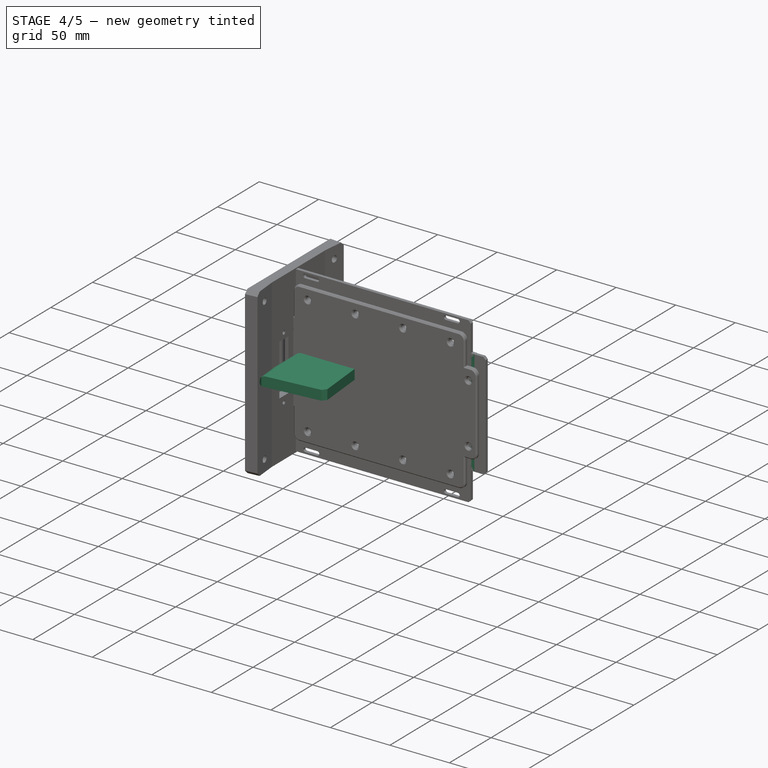
[diagram: stage 4 of 5 — iso view after this stage's code; geometry added in this stage tinted green]
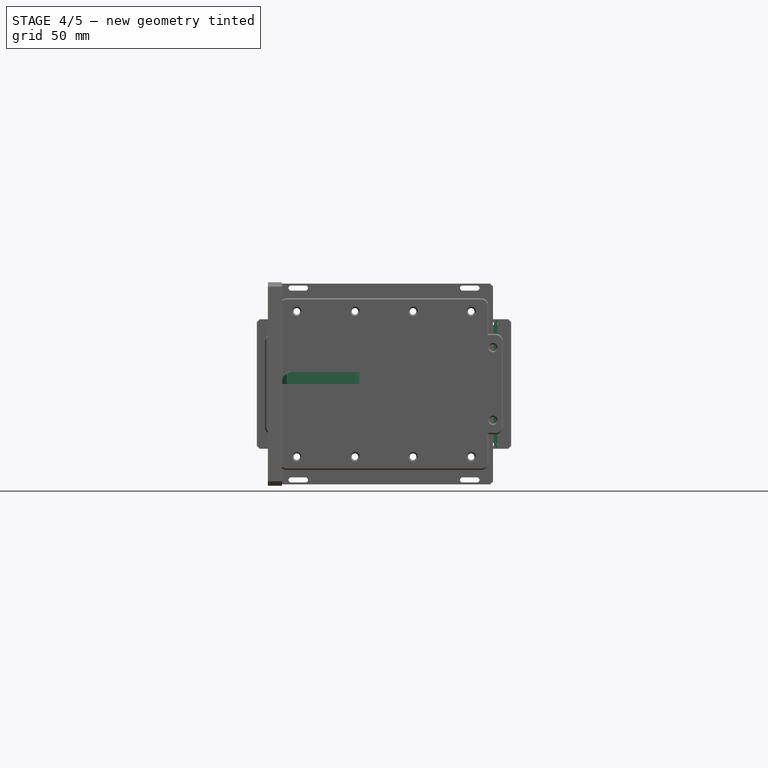
[diagram: stage 4 of 5 — front view after this stage's code; geometry added in this stage tinted green]
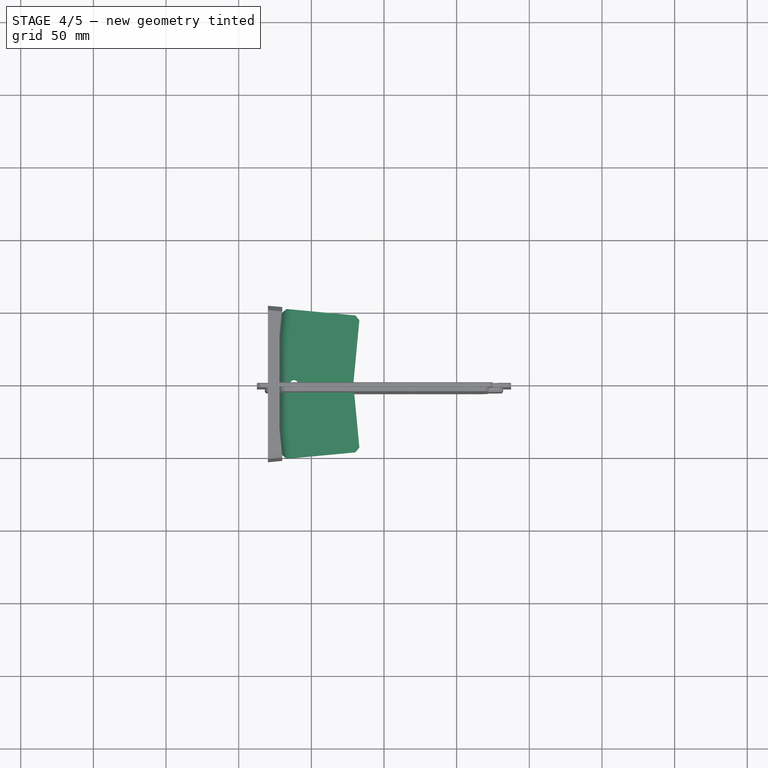
[diagram: stage 4 of 5 — top view after this stage's code; geometry added in this stage tinted green]
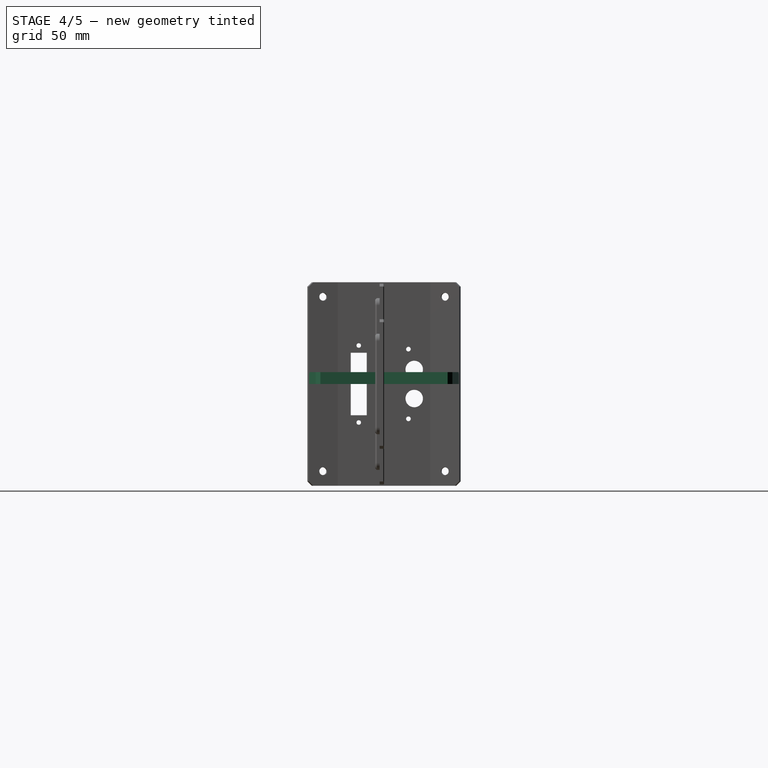
[diagram: stage 4 of 5 — right view after this stage's code; geometry added in this stage tinted green]
FEATURE [PartDesign::Body] Body  label="lateral-carter-core"
  AllowCompound = true
  Group = -> [Binder,Sketch,Pad,Sketch001,Pad001,Sketch002,Pocket,Chamfer,Chamfer001,Mirrored]
  Origin = -> Origin
  Tip = -> Mirrored
FEATURE [App::Point] Origin003  label="Origine002"
  Role = Origin
FEATURE [PartDesign::SubShapeBinder] Binder001
  BindCopyOnChange = 0
  BindMode = 0
  ClaimChildren = false
  Context = -> Part [Body001.Binder001.]
  Fuse = false
  MakeFace = true
  OffsetFill = false
  OffsetIntersection = false
  OffsetJoinType = 0
  OffsetOpenResult = false
  PartialLoad = false
  Refine = true
  Relative = true
  Support = -> [Body[Mirrored.Face31]]
  _Version = 2
FEATURE [Sketcher::SketchObject] Sketch003
  ArcFitTolerance = 1e-06
  AttachmentSupport = -> [Binder001]
  ExternalGeometry = -> [Binder001]
  ExternalTypes = [0]
  FullyConstrained = false
  MakeInternals = false
  MapMode = 5
  Placement = pos=(0,0,-2) rot=(1,0,0;3.14159rad)
  sketch-geometry (20):
    g0: LineSegment StartX=24.1062 StartY=0 StartZ=0 EndX=25.933 EndY=-19.4025 EndZ=0
    g1: LineSegment StartX=25.933 StartY=-19.4025 StartZ=0 EndX=26.1973 EndY=-19.6213 EndZ=0
    g2: LineSegment StartX=26.1973 StartY=-19.6213 StartZ=0 EndX=175.708 EndY=-5.5439 EndZ=0
    g3: LineSegment StartX=175.927 StartY=-5.27958 StartZ=0 EndX=175.708 EndY=-5.5439 EndZ=0
    g4: LineSegment StartX=175.927 StartY=-5.27958 StartZ=0 EndX=175.457 EndY=-0.281226 EndZ=0
    g5: ArcOfCircle CenterX=178.443 CenterY=0 CenterZ=0 NormalX=0 NormalY=0 NormalZ=1 AngleXU=-1.47692 Radius=3 StartAngle=4.52463 EndAngle=4.71239
    g6: LineSegment StartX=175.927 StartY=5.27958 StartZ=0 EndX=175.457 EndY=0.281226 EndZ=0
    g7: LineSegment StartX=175.927 StartY=5.27958 StartZ=0 EndX=175.708 EndY=5.5439 EndZ=0
    g8: LineSegment StartX=26.1973 StartY=19.6213 StartZ=0 EndX=175.708 EndY=5.5439 EndZ=0
    g9: LineSegment StartX=25.933 StartY=19.4025 StartZ=0 EndX=26.1973 EndY=19.6213 EndZ=0
    g10: LineSegment StartX=24.1062 StartY=0 StartZ=0 EndX=25.933 EndY=19.4025 EndZ=0
    g11: LineSegment [constr] StartX=24.1062 StartY=0 StartZ=0 EndX=21.1194 EndY=-0.281226 EndZ=0
    g12: LineSegment [constr] StartX=25.933 StartY=-19.4025 StartZ=0 EndX=24.0199 EndY=-21.7133 EndZ=0
    g13: LineSegment [constr] StartX=26.1973 StartY=-19.6213 StartZ=0 EndX=26.4786 EndY=-22.6081 EndZ=0
    g14: LineSegment [constr] StartX=175.927 StartY=-5.27958 StartZ=0 EndX=178.238 EndY=-7.19271 EndZ=0
    g15: LineSegment [constr] StartX=175.927 StartY=-5.27958 StartZ=0 EndX=178.914 EndY=-4.99836 EndZ=0
    g16: LineSegment [constr] StartX=175.927 StartY=5.27958 StartZ=0 EndX=178.238 EndY=7.19271 EndZ=0
    g17: LineSegment [constr] StartX=26.1973 StartY=19.6213 StartZ=0 EndX=26.4786 EndY=22.6081 EndZ=0
    g18: LineSegment [constr] StartX=25.933 StartY=19.4025 StartZ=0 EndX=24.0199 EndY=21.7133 EndZ=0
    g19: LineSegment [constr] StartX=24.1062 StartY=0 StartZ=0 EndX=21.1194 EndY=0.281226 EndZ=0
  constraints (58):
    c: Coincident(g0,g1)
    c: Coincident(g0,g10)
    c: Coincident(g1,g2)
    c: Coincident(g2,g3)
    c: Coincident(g3,g4)
    c: Tangent(g4,g5) = 1.5708
    c: Tangent(g5,g6) = -1.5708
    c: Coincident(g6,g7)
    c: Coincident(g7,g8)
    c: Coincident(g8,g9)
    c: Coincident(g9,g10)
    c: Perpendicular(g11,g0)
    c: PointOnObject(g11,g0)
    c: PointOnObject(g11,g-3)
    c: Perpendicular(g12,g1)
    c: PointOnObject(g12,g1)
    c: PointOnObject(g12,g-4)
    c: Perpendicular(g13,g2)
    c: PointOnObject(g13,g2)
    c: PointOnObject(g13,g-5)
    c: Perpendicular(g14,g3)
    c: PointOnObject(g14,g3)
    c: PointOnObject(g14,g-6)
    c: Perpendicular(g15,g4)
    c: PointOnObject(g15,g4)
    c: PointOnObject(g15,g-7)
    c: Perpendicular(g16,g7)
    c: PointOnObject(g16,g7)
    c: PointOnObject(g16,g-9)
    c: Perpendicular(g17,g8)
    c: PointOnObject(g17,g8)
    c: PointOnObject(g17,g-10)
    c: Perpendicular(g18,g9)
    c: PointOnObject(g18,g9)
    c: PointOnObject(g18,g-11)
    c: Perpendicular(g19,g10)
    c: PointOnObject(g19,g10)
    c: PointOnObject(g19,g-12)
    c: Parallel(g10,g-12)
    c: Parallel(g0,g-3)
    c: Parallel(g1,g-4)
    c: Equal(g12,g11)
    c: Parallel(g2,g-5)
    c: Equal(g13,g11)
    c: Parallel(g3,g-6)
    c: Equal(g14,g11)
    c: Parallel(g4,g-7)
    c: Equal(g15,g11)
    c: Coincident(g5,g-8)
    c: Parallel(g6,g-8)
    c: Parallel(g7,g-9)
    c: Equal(g16,g11)
    c: Parallel(g8,g-10)
    c: Equal(g17,g11)
    c: Parallel(g9,g-11)
    c: Equal(g18,g11)
    c: Equal(g19,g11)
    c: Distance(g11) = 3
FEATURE [PartDesign::Pad] Pad002
  Direction = (0,0,-1)
  Length = 10
  Length2 = 10
  Profile = -> Sketch003
  ReferenceAxis = -> Sketch003 [N_Axis]
  Refine = true
  Reversed = true
  SideType = 0
  Suppressed = false
  Type = 0
  Type2 = 0
FEATURE [PartDesign::Body] Body002  label="front-carter"
  AllowCompound = true
  Group = -> [Binder002,Sketch004,Binder003,Pad003,Sketch005,Pocket001,Chamfer002,Chamfer003,Fillet,Chamfer004,Mirrored001]
  Origin = -> Origin006
  Tip = -> Mirrored001
FEATURE [App::Point] Origin009  label="Origine008"
  Role = Origin
FEATURE [PartDesign::SubShapeBinder] Binder004
  BindCopyOnChange = 0
  BindMode = 0
  ClaimChildren = false
  Context = -> Part001 [Body003.Binder004.]
  Fuse = false
  MakeFace = true
  OffsetFill = false
  OffsetIntersection = false
  OffsetJoinType = 0
  OffsetOpenResult = false
  PartialLoad = false
  Refine = true
  Relative = true
  Support = -> [Link]
  _Version = 2
FEATURE [PartDesign::SubShapeBinder] Binder005
  BindCopyOnChange = 0
  BindMode = 0
  ClaimChildren = false
  Context = -> Part001 [Body003.Binder005.]
  Fuse = false
  MakeFace = true
  OffsetFill = false
  OffsetIntersection = false
  OffsetJoinType = 0
  OffsetOpenResult = false
  PartialLoad = false
  Refine = true
  Relative = true
  Support = -> [Part[Body.Mirrored.Face32]]
  _Version = 2
FEATURE [Sketcher::SketchObject] Sketch006
  ArcFitTolerance = 1e-06
  AttachmentSupport = -> [Origin008]
  ExternalGeometry = -> [Binder005,Binder004]
  ExternalTypes = [0,0,0,0,0,0,0]
  FullyConstrained = true
  MakeInternals = false
  MapMode = 5
  sketch-geometry (7):
    g0: LineSegment [constr] StartX=28.1118 StartY=42.5428 StartZ=0 EndX=-75 EndY=52.2515 EndZ=0
    g1: LineSegment [constr] StartX=-15.6944 StartY=46.6674 StartZ=0 EndX=-20.0885 EndY=0 EndZ=0
    g2: LineSegment StartX=-16.69 StartY=46.7612 StartZ=0 EndX=-21.0929 EndY=0 EndZ=0
    g3: LineSegment StartX=-71.9119 StartY=0 StartZ=0 EndX=-71.9119 EndY=31.8722 EndZ=0
    g4: LineSegment StartX=-71.9119 StartY=31.8722 StartZ=0 EndX=-70.0371 EndY=51.7842 EndZ=0
    g5: LineSegment StartX=-70.0371 StartY=51.7842 StartZ=0 EndX=-16.69 EndY=46.7612 EndZ=0
    g6: LineSegment StartX=-71.9119 StartY=0 StartZ=0 EndX=-21.0929 EndY=0 EndZ=0
  constraints (21):
    c: Coincident(g0,g-6)
    c: PointOnObject(g0,g-7)
    c: Parallel(g-6,g0)
    c: PointOnObject(g1,g0)
    c: PointOnObject(g1,g-1)
    c: Parallel(g1,g-3)
    c: Distance(g-3,g1) = 41
    c: PointOnObject(g2,g0)
    c: PointOnObject(g2,g-1)
    c: Coincident(g4,g3)
    c: PointOnObject(g4,g0)
    c: Coincident(g5,g4)
    c: Coincident(g5,g2)
    c: Parallel(g2,g1)
    c: Distance(g1,g2) = 1
    c: Perpendicular(g5,g4)
    c: Coincident(g3,g-9)
    c: PointOnObject(g3,g-1)
    c: Coincident(g6,g3)
    c: Coincident(g6,g2)
    c: Vertical(g3)
FEATURE [PartDesign::Pad] Pad004
  Direction = (0,0,1)
  Length = 8.2
  Length2 = 10
  Profile = -> Sketch006
  ReferenceAxis = -> Sketch006 [N_Axis]
  Refine = true
  SideType = 0
  Suppressed = false
  Type = 0
  Type2 = 0
FEATURE [PartDesign::Chamfer] Chamfer005
  Angle = 45
  Base = -> Pad004 [Edge5,Edge8]
  BaseFeature = -> Pad004
  ChamferType = 0
  FlipDirection = false
  Refine = true
  Size = 3
  Size2 = 1
  SupportTransform = false
  Suppressed = false
  UseAllEdges = false
FEATURE [PartDesign::Fillet] Fillet001
  Base = -> Chamfer005 [Edge14]
  BaseFeature = -> Chamfer005
  Radius = 7
  Refine = true
  SupportTransform = false
  Suppressed = false
  UseAllEdges = false
FEATURE [PartDesign::Mirrored] Mirrored002
  BaseFeature = -> Fillet001
  MirrorPlane = -> Fillet001 [Face9]
  Refine = true
  Suppressed = false
  TransformMode = 1
FEATURE [Sketcher::SketchObject] Sketch007
  ArcFitTolerance = 1e-06
  AttachmentSupport = -> [Mirrored002]
  ExternalGeometry = -> [Binder004]
  ExternalTypes = [0]
  FullyConstrained = true
  MakeInternals = false
  MapMode = 5
  Placement = pos=(0,0,8.2) rot=(0,0,1;0rad)
  sketch-geometry (1):
    g0: Circle CenterX=-62 CenterY=0 CenterZ=0 NormalX=0 NormalY=0 NormalZ=1 AngleXU=0 Radius=2.7
  constraints (3):
    c: PointOnObject(g0,g-1)
    c: Diameter(g0) = 5.4
    c: Distance(g0,g-3) = 10
FEATURE [PartDesign::Pocket] Pocket002
  BaseFeature = -> Mirrored002
  Direction = (0,0,-1)
  Length = 5
  Length2 = 5
  Profile = -> Sketch007
  ReferenceAxis = -> Sketch007 [N_Axis]
  Refine = true
  SideType = 0
  Suppressed = false
  Type = 1
  Type2 = 0
FEATURE [Sketcher::SketchObject] Sketch008
  ArcFitTolerance = 1e-06
  AttachmentSupport = -> [Pocket002]
  ExternalGeometry = -> [Pocket002]
  ExternalTypes = [0]
  FullyConstrained = true
  MakeInternals = false
  MapMode = 5
  Placement = pos=(0,0,8.2) rot=(0,0,1;0rad)
  sketch-geometry (1):
    g0: Circle CenterX=-62 CenterY=0 CenterZ=0 NormalX=0 NormalY=0 NormalZ=1 AngleXU=0 Radius=5
  constraints (2):
    c: Coincident(g0,g-3)
    c: Diameter(g0) = 10
FEATURE [PartDesign::Pocket] Pocket003
  BaseFeature = -> Pocket002
  Direction = (0,0,-1)
  Length = 1.5
  Length2 = 5
  Profile = -> Sketch008
  ReferenceAxis = -> Sketch008 [N_Axis]
  Refine = true
  SideType = 0
  Suppressed = false
  Type = 0
  Type2 = 0
FEATURE [Sketcher::SketchObject] Sketch009
  ArcFitTolerance = 1e-06
  AttachmentSupport = -> [Pocket003]
  ExternalGeometry = -> [Binder004,Pocket003]
  ExternalTypes = [0,0,0,0,0]
  FullyConstrained = true
  MakeInternals = false
  MapMode = 5
  Placement = pos=(0,0,0) rot=(1,0,0;3.14159rad)
  sketch-geometry (5):
    g0: LineSegment StartX=-18.5649 StartY=26.8493 StartZ=0 EndX=-52 EndY=29.9974 EndZ=0
    g1: LineSegment StartX=-52 StartY=29.9974 StartZ=0 EndX=-52 EndY=-29.9974 EndZ=0
    g2: LineSegment StartX=-52 StartY=-29.9974 StartZ=0 EndX=-18.5649 EndY=-26.8493 EndZ=0
    g3: LineSegment StartX=-18.5649 StartY=-26.8493 StartZ=0 EndX=-21.0929 EndY=0 EndZ=0
    g4: LineSegment StartX=-21.0929 StartY=0 StartZ=0 EndX=-18.5649 EndY=26.8493 EndZ=0
  constraints (14):
    c: PointOnObject(g0,g-6)
    c: PointOnObject(g0,g-3)
    c: Coincident(g1,g0)
    c: PointOnObject(g1,g-4)
    c: Vertical(g1)
    c: Coincident(g2,g1)
    c: PointOnObject(g2,g-5)
    c: Coincident(g3,g2)
    c: Coincident(g4,g3)
    c: Coincident(g4,g0)
    c: PointOnObject(g0,g-3)
    c: PointOnObject(g1,g-5)
    c: Coincident(g3,g-7)
    c: PointOnObject(g2,g-7)
FEATURE [PartDesign::Pad] Pad005
  BaseFeature = -> Pocket003
  Direction = (0,0,-1)
  Length = 2
  Length2 = 10
  Profile = -> Sketch009
  ReferenceAxis = -> Sketch009 [N_Axis]
  Refine = true
  SideType = 0
  Suppressed = false
  Type = 0
  Type2 = 0
FEATURE [PartDesign::Body] Body004  label="lateral-rear-carter-center"
  AllowCompound = true
  Group = -> [CopyPad005,Sketch010,Pad006]
  Origin = -> Origin010
  Tip = -> Pad006
FEATURE [App::Point] Origin013  label="Origine012"
  Role = Origin
FEATURE [App::Point] Origin015  label="Origine014"
  Role = Origin
FEATURE [Sketcher::SketchObject] Sketch011
  ArcFitTolerance = 1e-06
  AttachmentSupport = -> [Origin014]
  ExternalTypes = [0]
  FullyConstrained = true
  MakeInternals = false
  MapMode = 5
  Placement = pos=(0,0,0) rot=(1,0,0;1.5708rad)
  sketch-geometry (13):
    g0: LineSegment [constr] StartX=-78 StartY=-45 StartZ=0 EndX=78 EndY=-45 EndZ=0
    g1: LineSegment [constr] StartX=78 StartY=-45 StartZ=0 EndX=78 EndY=45 EndZ=0
    g2: LineSegment [constr] StartX=78 StartY=45 StartZ=0 EndX=-78 EndY=45 EndZ=0
    g3: LineSegment [constr] StartX=-78 StartY=45 StartZ=0 EndX=-78 EndY=-45 EndZ=0
    g4: GeomPoint [constr] X=0 Y=0 Z=0
    g5: LineSegment [constr] StartX=-78 StartY=-44.6 StartZ=0 EndX=78 EndY=-44.6 EndZ=0
    g6: LineSegment StartX=78 StartY=-44.6 StartZ=0 EndX=78 EndY=44.6 EndZ=0
    g7: LineSegment [constr] StartX=78 StartY=44.6 StartZ=0 EndX=-78 EndY=44.6 EndZ=0
    g8: LineSegment [constr] StartX=-78 StartY=44.6 StartZ=0 EndX=-78 EndY=-44.6 EndZ=0
    g9: GeomPoint [constr] X=0 Y=0 Z=0
    g10: LineSegment StartX=-6.1e-15 StartY=-44.6 StartZ=0 EndX=-6.1e-15 EndY=44.6 EndZ=0
    g11: LineSegment StartX=-6.1e-15 StartY=44.6 StartZ=0 EndX=78 EndY=44.6 EndZ=0
    g12: LineSegment StartX=-6.1e-15 StartY=-44.6 StartZ=0 EndX=78 EndY=-44.6 EndZ=0
  constraints (30):
    c: Coincident(g0,g1)
    c: Coincident(g1,g2)
    c: Coincident(g2,g3)
    c: Coincident(g3,g0)
    c: Horizontal(g0)
    c: Horizontal(g2)
    c: Vertical(g1)
    c: Vertical(g3)
    c: Symmetric(g2,g0,g4)
    c: Coincident(g4,g-1)
    c: DistanceX(g2,g2) = 156
    c: DistanceY(g1,g1) = 90
    c: Coincident(g5,g6)
    c: Coincident(g6,g7)
    c: Coincident(g7,g8)
    c: Coincident(g8,g5)
    c: Horizontal(g5)
    c: Horizontal(g7)
    c: Vertical(g6)
    c: Vertical(g8)
    c: Symmetric(g7,g5,g9)
    c: Coincident(g9,g4)
    c: PointOnObject(g6,g1)
    c: Distance(g6,g1) = 0.4
    c: Symmetric(g5,g5,g10)
    c: Symmetric(g7,g7,g10)
    c: Coincident(g11,g10)
    c: Coincident(g11,g6)
    c: Coincident(g12,g10)
    c: Coincident(g12,g5)
FEATURE [PartDesign::Pad] Pad007
  Direction = (0,-1,2e-16)
  Length = 3
  Length2 = 10
  Profile = -> Sketch011
  ReferenceAxis = -> Sketch011 [N_Axis]
  Refine = true
  SideType = 0
  Suppressed = false
  Type = 0
  Type2 = 0
FEATURE [Sketcher::SketchObject] Sketch012
  ArcFitTolerance = 1e-06
  AttachmentSupport = -> [Origin014]
  ExternalGeometry = -> [Pad007]
  ExternalTypes = [0,0]
  FullyConstrained = true
  MakeInternals = false
  MapMode = 5
  Placement = pos=(0,0,0) rot=(1,0,0;1.5708rad)
  sketch-geometry (4):
    g0: ArcOfCircle CenterX=74 CenterY=41.5 CenterZ=0 NormalX=0 NormalY=0 NormalZ=1 AngleXU=0 Radius=1.7 StartAngle=4.71239 EndAngle=7.85398
    g1: ArcOfCircle CenterX=70 CenterY=41.5 CenterZ=0 NormalX=0 NormalY=0 NormalZ=1 AngleXU=0 Radius=1.7 StartAngle=1.5708 EndAngle=4.71239
    g2: LineSegment StartX=74 StartY=39.8 StartZ=0 EndX=70 EndY=39.8 EndZ=0
    g3: LineSegment StartX=74 StartY=43.2 StartZ=0 EndX=70 EndY=43.2 EndZ=0
  constraints (10):
    c: Tangent(g0,g2) = 1.5708
    c: Tangent(g0,g3) = -1.5708
    c: Tangent(g1,g2) = 1.5708
    c: Tangent(g1,g3) = -1.5708
    c: Equal(g0,g1)
    c: Horizontal(g3)
    c: DistanceX(g1,g0) = 4
    c: Radius(g0) = 1.7
    c: Distance(g0,g-3) = 4
    c: DistanceY(g-1,g0) = 41.5
FEATURE [PartDesign::Pocket] Pocket004
  BaseFeature = -> Pad007
  Direction = (0,1,-2e-16)
  Length = 5
  Length2 = 5
  Profile = -> Sketch012
  ReferenceAxis = -> Sketch012 [N_Axis]
  Refine = true
  Reversed = true
  SideType = 0
  Suppressed = false
  Type = 0
  Type2 = 0
FEATURE [PartDesign::Mirrored] Mirrored004
  BaseFeature = -> Pocket004
  MirrorPlane = -> XY_Plane007
  Originals = -> [Pocket004]
  Refine = true
  Suppressed = false
  TransformMode = 0
FEATURE [PartDesign::Mirrored] Mirrored005
  BaseFeature = -> Mirrored004
  MirrorPlane = -> YZ_Plane007
  Refine = true
  Suppressed = false
  TransformMode = 1
FEATURE [PartDesign::Body] Body006  label="top-carter-center"
  AllowCompound = true
  Group = -> [Binder006,Sketch015,Pad010]
  Origin = -> Origin018
  Tip = -> Pad010
FEATURE [App::Part] Part002
  Group = -> [Body005,Body006]
  Origin = -> Origin016
FEATURE [PartDesign::Pocket] Pocket005
  BaseFeature = -> Pad005
  Direction = (0,0,1)
  Length = 2
  Length2 = 5
  Profile = -> Pad005 [Face20]
  Refine = true
  SideType = 0
  Suppressed = false
  Type = 0
  Type2 = 0
FEATURE [Sketcher::SketchObject] Sketch003
  ArcFitTolerance = 1e-06
  AttachmentSupport = -> [Pocket001]
  ExternalGeometry = -> [Pocket001]
  ExternalTypes = [0,0]
  FullyConstrained = true
  MakeInternals = false
  MapMode = 5
  Placement = pos=(0,-18,0) rot=(1,0,0;1.5708rad)
  sketch-geometry (3):
    g0: Circle CenterX=-24 CenterY=0 CenterZ=0 NormalX=0 NormalY=0 NormalZ=1 AngleXU=0 Radius=2.3
    g1: Circle CenterX=24 CenterY=0 CenterZ=0 NormalX=0 NormalY=0 NormalZ=1 AngleXU=0 Radius=2.3
    g2: LineSegment [constr] StartX=24 StartY=-15 StartZ=0 EndX=24 EndY=0 EndZ=0
  constraints (7):
    c: PointOnObject(g0,g-1)
    c: Equal(g1,g0)
    c: Diameter(g1) = 4.6
    c: Symmetric(g1,g0,g-2)
    c: Symmetric(g-4,g-4,g2)
    c: Coincident(g2,g1)
    c: Vertical(g2)
FEATURE [PartDesign::Pocket] Pocket002
  BaseFeature = -> Pocket001
  Direction = (0,1,-2e-16)
  Length = 10
  Length2 = 5
  Profile = -> Sketch003
  ReferenceAxis = -> Sketch003 [N_Axis]
  Refine = true
  SideType = 0
  Suppressed = false
  Type = 0
  Type2 = 0
FEATURE [Sketcher::SketchObject] Sketch004
  ArcFitTolerance = 1e-06
  ExternalTypes = [0,0]
  FullyConstrained = true
  MakeInternals = false
  MapMode = 5
  Placement = pos=(0,-3,1e-15) rot=(1,0,0;1.5708rad)
  sketch-geometry (3):
    g0: Circle CenterX=-10 CenterY=0 CenterZ=0 NormalX=0 NormalY=0 NormalZ=1 AngleXU=0 Radius=4
    g1: Circle CenterX=10 CenterY=0 CenterZ=0 NormalX=0 NormalY=0 NormalZ=1 AngleXU=0 Radius=4
    g2: LineSegment [constr] StartX=-10 StartY=0 StartZ=0 EndX=-10 EndY=10 EndZ=0
  constraints (7):
    c: PointOnObject(g0,g-1)
    c: Equal(g0,g1)
    c: Diameter(g0) = 8
    c: Coincident(g2,g0)
    c: Symmetric(g-4,g-4,g2)
    c: Vertical(g2)
    c: Symmetric(g0,g1,g-2)
FEATURE [PartDesign::Pocket] Pocket003
  BaseFeature = -> Chamfer002
  Direction = (0,1,-2e-16)
  Length = 5
  Length2 = 5
  Profile = -> Sketch004
  ReferenceAxis = -> Sketch004 [N_Axis]
  Refine = true
  SideType = 0
  Suppressed = false
  Type = 0
  Type2 = 0
FEATURE [PartDesign::Fillet] Fillet001
  Base = -> Chamfer003 [Edge43,Edge50,Edge38,Edge26]
  BaseFeature = -> Chamfer003
  Radius = 1
  Refine = true
  SupportTransform = false
  Suppressed = false
  UseAllEdges = false
FEATURE [PartDesign::Body] Body  label="support-power-switch"
  AllowCompound = true
  Group = -> [Sketch,Pad,Sketch001,Pocket,Sketch002,Pocket001,Sketch003,Pocket002,Fillet,Chamfer,Chamfer001,Chamfer002,Sketch004,Pocket003,Chamfer003,Fillet001]
  Origin = -> Origin
  Tip = -> Fillet001
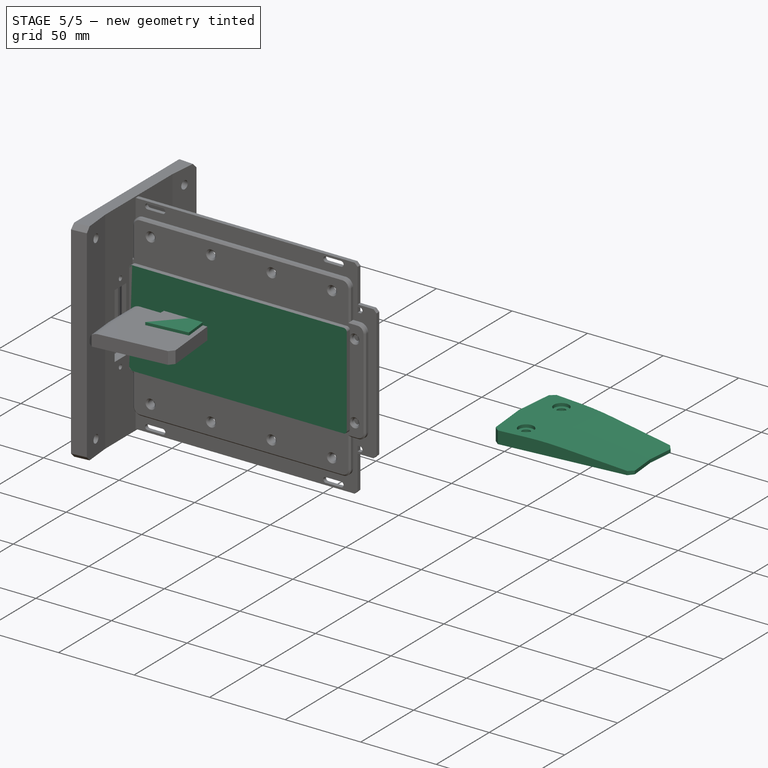
[diagram: stage 5 of 5 — iso view after this stage's code; geometry added in this stage tinted green]
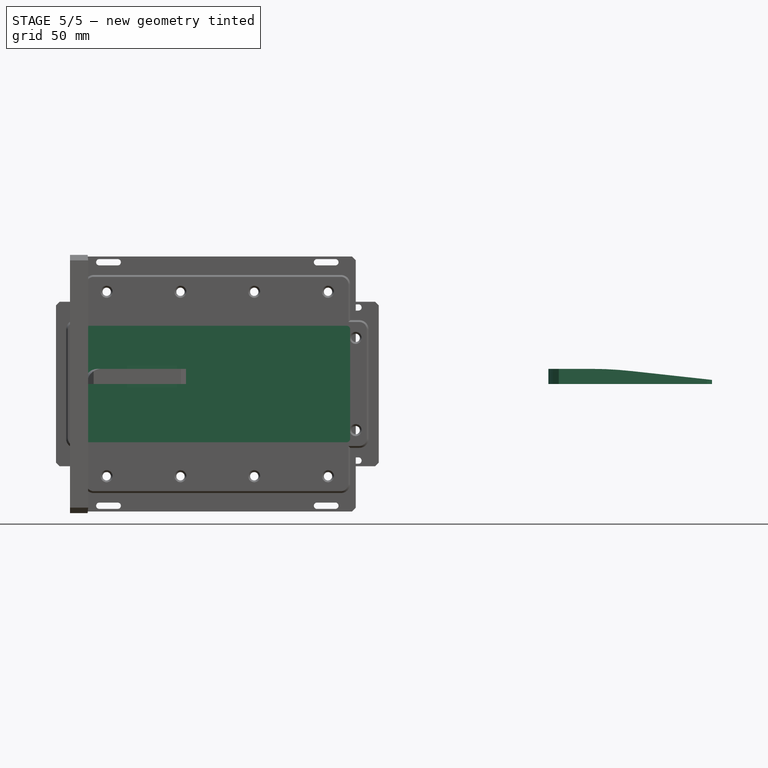
[diagram: stage 5 of 5 — front view after this stage's code; geometry added in this stage tinted green]
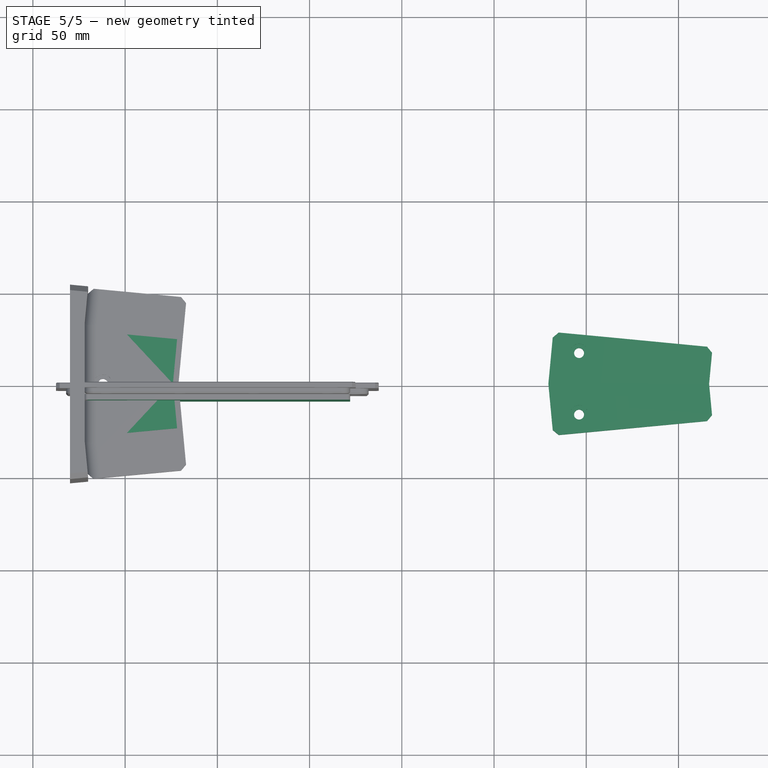
[diagram: stage 5 of 5 — top view after this stage's code; geometry added in this stage tinted green]
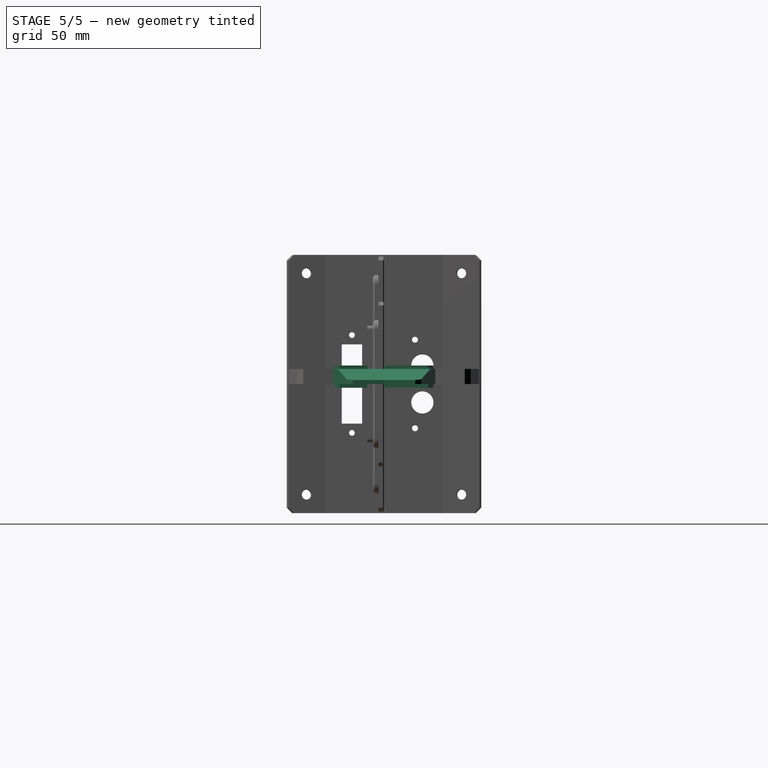
[diagram: stage 5 of 5 — right view after this stage's code; geometry added in this stage tinted green]
FEATURE [PartDesign::Body] Body001  label="lateral-carter-center"
  AllowCompound = true
  Group = -> [Binder001,Sketch003,Pad002]
  Origin = -> Origin002
  Tip = -> Pad002
FEATURE [App::Part] Part  label="lateral-carter"
  Group = -> [Body,Body001]
  Origin = -> Origin004
FEATURE [App::Point] Origin005  label="Origine004"
  Role = Origin
FEATURE [App::Point] Origin007  label="Origine006"
  Role = Origin
FEATURE [PartDesign::SubShapeBinder] Binder002
  BindCopyOnChange = 0
  BindMode = 0
  ClaimChildren = false
  Context = -> Body002 [Binder002.]
  Fuse = false
  MakeFace = true
  OffsetFill = false
  OffsetIntersection = false
  OffsetJoinType = 0
  OffsetOpenResult = false
  PartialLoad = false
  Refine = true
  Relative = true
  Support = -> [Link]
  _Version = 2
FEATURE [PartDesign::SubShapeBinder] Binder003
  BindCopyOnChange = 0
  BindMode = 0
  ClaimChildren = false
  Context = -> Body002 [Binder003.]
  Fuse = false
  MakeFace = true
  OffsetFill = false
  OffsetIntersection = false
  OffsetJoinType = 0
  OffsetOpenResult = false
  PartialLoad = false
  Refine = true
  Relative = true
  Support = -> [Part[Body.Mirrored.Face32]]
  _Version = 2
FEATURE [Sketcher::SketchObject] Sketch004
  ArcFitTolerance = 1e-06
  AttachmentSupport = -> [Origin006]
  ExternalGeometry = -> [Binder002,Binder003]
  ExternalTypes = [0,0,0,0,0,0]
  FullyConstrained = true
  MakeInternals = false
  MapMode = 5
  sketch-geometry (7):
    g0: LineSegment StartX=268.466 StartY=19.9119 StartZ=0 EndX=182.088 EndY=28.0449 EndZ=0
    g1: LineSegment StartX=182.088 StartY=28.0449 StartZ=0 EndX=179.448 EndY=0 EndZ=0
    g2: LineSegment StartX=179.448 StartY=0 StartZ=0 EndX=266.591 EndY=0 EndZ=0
    g3: LineSegment StartX=266.591 StartY=0 StartZ=0 EndX=268.466 EndY=19.9119 EndZ=0
    g4: Circle CenterX=196.085 CenterY=16.6828 CenterZ=0 NormalX=0 NormalY=0 NormalZ=1 AngleXU=0 Radius=2.7
    g5: GeomPoint X=180.214 Y=8.13298 Z=0
    g6: LineSegment [constr] StartX=196.085 StartY=16.6828 StartZ=0 EndX=197.022 EndY=26.6388 EndZ=0
  constraints (19):
    c: PointOnObject(g0,g-5)
    c: Coincident(g0,g1)
    c: PointOnObject(g1,g-1)
    c: Coincident(g2,g1)
    c: Coincident(g2,g-5)
    c: Coincident(g3,g2)
    c: Coincident(g3,g0)
    c: Parallel(g0,g-6)
    c: Perpendicular(g0,g1)
    c: Distance(g1,g-8) = 1
    c: Distance(g3,g3) = 20
    c: Diameter(g4) = 5.4
    c: PointOnObject(g5,g-3)
    c: PointOnObject(g5,g1)
    c: Coincident(g6,g4)
    c: Distance(g6,g6) = 10
    c: Perpendicular(g0,g6)
    c: PointOnObject(g6,g0)
    c: Distance(g6,g1) = 15
FEATURE [PartDesign::Pad] Pad003
  Direction = (0,0,1)
  Length = 8.2
  Length2 = 10
  Profile = -> Sketch004
  ReferenceAxis = -> Sketch004 [N_Axis]
  Refine = true
  SideType = 0
  Suppressed = false
  Type = 0
  Type2 = 0
FEATURE [Sketcher::SketchObject] Sketch005
  ArcFitTolerance = 1e-06
  AttachmentSupport = -> [Pad003]
  ExternalGeometry = -> [Pad003]
  ExternalTypes = [0]
  FullyConstrained = true
  MakeInternals = false
  MapMode = 5
  Placement = pos=(0,0,8.2) rot=(0,0,1;0rad)
  sketch-geometry (1):
    g0: Circle CenterX=196.085 CenterY=16.6828 CenterZ=0 NormalX=0 NormalY=0 NormalZ=1 AngleXU=0 Radius=5
  constraints (2):
    c: Coincident(g0,g-3)
    c: Diameter(g0) = 10
FEATURE [PartDesign::Pocket] Pocket001
  BaseFeature = -> Pad003
  Direction = (0,0,-1)
  Length = 2
  Length2 = 5
  Profile = -> Sketch005
  ReferenceAxis = -> Sketch005 [N_Axis]
  Refine = true
  SideType = 0
  Suppressed = false
  Type = 0
  Type2 = 0
FEATURE [PartDesign::Chamfer] Chamfer002
  Angle = 45
  Base = -> Pocket001 [Edge2]
  BaseFeature = -> Pocket001
  ChamferType = 0
  FlipDirection = false
  Refine = true
  Size = 3
  Size2 = 1
  SupportTransform = false
  Suppressed = false
  UseAllEdges = false
FEATURE [PartDesign::Chamfer] Chamfer003
  Angle = 45
  Base = -> Chamfer002 [Edge13]
  BaseFeature = -> Chamfer002
  ChamferType = 1
  FlipDirection = false
  Refine = true
  Size = 6
  Size2 = 55
  SupportTransform = false
  Suppressed = false
  UseAllEdges = false
FEATURE [PartDesign::Fillet] Fillet
  Base = -> Chamfer003 [Edge10]
  BaseFeature = -> Chamfer003
  Radius = 200
  Refine = true
  SupportTransform = false
  Suppressed = false
  UseAllEdges = false
FEATURE [PartDesign::Chamfer] Chamfer004
  Angle = 45
  Base = -> Fillet [Edge3]
  BaseFeature = -> Fillet
  ChamferType = 0
  FlipDirection = false
  Refine = true
  Size = 3
  Size2 = 1
  SupportTransform = false
  Suppressed = false
  UseAllEdges = false
FEATURE [PartDesign::Mirrored] Mirrored001
  BaseFeature = -> Chamfer004
  MirrorPlane = -> Chamfer004 [Face9]
  Refine = true
  Suppressed = false
  TransformMode = 1
FEATURE [App::Point] Origin011  label="Origine010"
  Role = Origin
FEATURE [PartDesign::ShapeBinder] CopyPad005
  Placement = pos=(0,0,-2) rot=(0,0,1;0rad)
  TraceSupport = false
FEATURE [Sketcher::SketchObject] Sketch010
  ArcFitTolerance = 1e-06
  AttachmentSupport = -> [CopyPad005]
  ExternalGeometry = -> [CopyPad005]
  ExternalTypes = [0]
  FullyConstrained = false
  MakeInternals = false
  MapMode = 5
  Placement = pos=(0,0,-2) rot=(1,0,0;3.14159rad)
  sketch-geometry (10):
    g0: LineSegment StartX=-21.8329 StartY=24.1437 StartZ=0 EndX=-49 EndY=26.7017 EndZ=0
    g1: LineSegment StartX=-49 StartY=26.7017 StartZ=0 EndX=-49 EndY=-26.7017 EndZ=0
    g2: LineSegment StartX=-49 StartY=-26.7017 StartZ=0 EndX=-21.8329 EndY=-24.1437 EndZ=0
    g3: LineSegment StartX=-21.8329 StartY=-24.1437 StartZ=0 EndX=-24.0797 EndY=-0.281226 EndZ=0
    g4: ArcOfCircle CenterX=-21.0929 CenterY=3.6e-15 CenterZ=0 NormalX=0 NormalY=0 NormalZ=1 AngleXU=-1.47692 Radius=3 StartAngle=4.52463 EndAngle=4.71239
    g5: LineSegment StartX=-24.0797 StartY=0.281226 StartZ=0 EndX=-21.8329 EndY=24.1437 EndZ=0
    g6: LineSegment [constr] StartX=-21.8329 StartY=24.1437 StartZ=0 EndX=-21.5516 EndY=27.1305 EndZ=0
    g7: LineSegment [constr] StartX=-49 StartY=26.7017 StartZ=0 EndX=-52 EndY=26.7017 EndZ=0
    g8: LineSegment [constr] StartX=-49 StartY=-26.7017 StartZ=0 EndX=-48.7188 EndY=-29.6884 EndZ=0
    g9: LineSegment [constr] StartX=-21.8329 StartY=-24.1437 StartZ=0 EndX=-18.8461 EndY=-23.8625 EndZ=0
  constraints (28):
    c: Coincident(g0,g1)
    c: Coincident(g0,g5)
    c: Coincident(g1,g2)
    c: Coincident(g2,g3)
    c: Tangent(g3,g4) = 1.5708
    c: Tangent(g4,g5) = 1.5708
    c: Perpendicular(g6,g0)
    c: PointOnObject(g6,g0)
    c: PointOnObject(g6,g-3)
    c: Perpendicular(g7,g1)
    c: PointOnObject(g7,g1)
    c: PointOnObject(g7,g-4)
    c: Perpendicular(g8,g2)
    c: PointOnObject(g8,g2)
    c: PointOnObject(g8,g-5)
    c: Perpendicular(g9,g3)
    c: PointOnObject(g9,g3)
    c: PointOnObject(g9,g-6)
    c: Parallel(g5,g-7)
    c: Parallel(g0,g-3)
    c: Parallel(g1,g-4)
    c: Equal(g7,g6)
    c: Parallel(g2,g-5)
    c: Equal(g8,g6)
    c: Parallel(g3,g-6)
    c: Equal(g9,g6)
    c: Coincident(g4,g-7)
    c: Distance(g6) = 3
FEATURE [PartDesign::Pad] Pad006
  Direction = (0,0,-1)
  Length = 12
  Length2 = 10
  Placement = pos=(0,0,-2) rot=(0,0,1;0rad)
  Profile = -> Sketch010
  ReferenceAxis = -> Sketch010 [N_Axis]
  Refine = true
  Reversed = true
  SideType = 0
  Suppressed = false
  Type = 0
  Type2 = 0
FEATURE [PartDesign::Chamfer] Chamfer006
  Angle = 45
  Base = -> Mirrored005 [Edge1,Edge2,Edge6,Edge8]
  BaseFeature = -> Mirrored005
  ChamferType = 0
  FlipDirection = false
  Refine = true
  Size = 2
  Size2 = 1
  SupportTransform = false
  Suppressed = false
  UseAllEdges = false
FEATURE [Sketcher::SketchObject] Sketch013
  ArcFitTolerance = 1e-06
  AttachmentSupport = -> [Origin014]
  ExternalGeometry = -> [Chamfer006]
  ExternalTypes = [0]
  FullyConstrained = true
  MakeInternals = false
  MapMode = 5
  Placement = pos=(0,0,0) rot=(1,0,0;1.5708rad)
  sketch-geometry (5):
    g0: LineSegment StartX=93 StartY=-36.5 StartZ=0 EndX=93 EndY=36.5 EndZ=0
    g1: LineSegment StartX=93 StartY=36.5 StartZ=0 EndX=78 EndY=36.5 EndZ=0
    g2: LineSegment StartX=78 StartY=36.5 StartZ=0 EndX=78 EndY=-36.5 EndZ=0
    g3: LineSegment StartX=78 StartY=-36.5 StartZ=0 EndX=93 EndY=-36.5 EndZ=0
    g4: GeomPoint [constr] X=85.5 Y=0 Z=0
  constraints (13):
    c: Coincident(g0,g1)
    c: Coincident(g1,g2)
    c: Coincident(g2,g3)
    c: Coincident(g3,g0)
    c: Vertical(g0)
    c: Vertical(g2)
    c: Horizontal(g1)
    c: Horizontal(g3)
    c: Symmetric(g2,g0,g4)
    c: PointOnObject(g4,g-1)
    c: PointOnObject(g1,g-3)
    c: DistanceY(g0,g0) = 73
    c: DistanceX(g1,g1) = 15
FEATURE [PartDesign::Pad] Pad008
  BaseFeature = -> Chamfer006
  Direction = (0,-1,2e-16)
  Length = 3
  Length2 = 10
  Profile = -> Sketch013
  ReferenceAxis = -> Sketch013 [N_Axis]
  Refine = true
  SideType = 0
  Suppressed = false
  Type = 0
  Type2 = 0
FEATURE [PartDesign::Chamfer] Chamfer007
  Angle = 45
  Base = -> Pad008 [Edge15,Edge32]
  BaseFeature = -> Pad008
  ChamferType = 0
  FlipDirection = false
  Refine = true
  Size = 2
  Size2 = 1
  SupportTransform = false
  Suppressed = false
  UseAllEdges = false
FEATURE [Sketcher::SketchObject] Sketch014
  ArcFitTolerance = 1e-06
  AttachmentSupport = -> [Chamfer007]
  ExternalGeometry = -> [Chamfer007]
  ExternalTypes = [0,0]
  FullyConstrained = true
  MakeInternals = false
  MapMode = 5
  Placement = pos=(0,-3,0) rot=(1,0,0;1.5708rad)
  sketch-geometry (5):
    g0: LineSegment StartX=-75 StartY=-34.6 StartZ=0 EndX=75 EndY=-34.6 EndZ=0
    g1: LineSegment StartX=75 StartY=-34.6 StartZ=0 EndX=75 EndY=34.6 EndZ=0
    g2: LineSegment StartX=75 StartY=34.6 StartZ=0 EndX=-75 EndY=34.6 EndZ=0
    g3: LineSegment StartX=-75 StartY=34.6 StartZ=0 EndX=-75 EndY=-34.6 EndZ=0
    g4: GeomPoint [constr] X=0 Y=0 Z=0
  constraints (12):
    c: Coincident(g0,g1)
    c: Coincident(g1,g2)
    c: Coincident(g2,g3)
    c: Coincident(g3,g0)
    c: Horizontal(g0)
    c: Horizontal(g2)
    c: Vertical(g1)
    c: Vertical(g3)
    c: Symmetric(g2,g0,g4)
    c: Coincident(g4,g-1)
    c: Distance(g-3,g3) = 3
    c: Distance(g-4,g2) = 10
FEATURE [PartDesign::Pad] Pad009
  BaseFeature = -> Chamfer007
  Direction = (0,-1,2e-16)
  Length = 3
  Length2 = 10
  Profile = -> Sketch014
  ReferenceAxis = -> Sketch014 [N_Axis]
  Refine = true
  SideType = 0
  Suppressed = false
  Type = 0
  Type2 = 0
FEATURE [PartDesign::Fillet] Fillet002
  Base = -> Pad009 [Edge98,Edge96,Edge100,Edge95]
  BaseFeature = -> Pad009
  Radius = 5
  Refine = true
  SupportTransform = false
  Suppressed = false
  UseAllEdges = false
FEATURE [PartDesign::Body] Body005  label="top-carter-core"
  AllowCompound = true
  Group = -> [Sketch011,Pad007,Sketch012,Pocket004,Mirrored004,Mirrored005,Chamfer006,Sketch013,Pad008,Chamfer007,Sketch014,Pad009,Fillet002]
  Origin = -> Origin014
  Tip = -> Fillet002
FEATURE [App::Point] Origin017  label="Origine016"
  Role = Origin
FEATURE [App::Point] Origin019  label="Origine018"
  Role = Origin
FEATURE [PartDesign::SubShapeBinder] Binder006
  BindCopyOnChange = 0
  BindMode = 0
  ClaimChildren = false
  Context = -> Part002 [Body006.Binder006.]
  Fuse = false
  MakeFace = true
  OffsetFill = false
  OffsetIntersection = false
  OffsetJoinType = 0
  OffsetOpenResult = false
  PartialLoad = false
  Refine = true
  Relative = true
  Support = -> [Body005[Fillet002.Face40]]
  _Version = 2
FEATURE [Sketcher::SketchObject] Sketch015
  ArcFitTolerance = 1e-06
  AttachmentSupport = -> [Binder006]
  ExternalGeometry = -> [Binder006]
  ExternalTypes = [0]
  FullyConstrained = true
  MakeInternals = false
  MapMode = 5
  Placement = pos=(0,-6,0) rot=(1,0,0;1.5708rad)
  sketch-geometry (8):
    g0: LineSegment StartX=-70 StartY=-31.6 StartZ=0 EndX=70 EndY=-31.6 EndZ=0
    g1: ArcOfCircle CenterX=70 CenterY=-29.6 CenterZ=0 NormalX=0 NormalY=0 NormalZ=1 AngleXU=-1.5708 Radius=2 StartAngle=-1.901e-13 EndAngle=1.5708
    g2: LineSegment StartX=72 StartY=-29.6 StartZ=0 EndX=72 EndY=29.6 EndZ=0
    g3: ArcOfCircle CenterX=70 CenterY=29.6 CenterZ=0 NormalX=0 NormalY=0 NormalZ=1 AngleXU=-1.5708 Radius=2 StartAngle=1.5708 EndAngle=3.14159
    g4: LineSegment StartX=70 StartY=31.6 StartZ=0 EndX=-70 EndY=31.6 EndZ=0
    g5: ArcOfCircle CenterX=-70 CenterY=29.6 CenterZ=0 NormalX=0 NormalY=0 NormalZ=1 AngleXU=-1.5708 Radius=2 StartAngle=3.14159 EndAngle=4.71239
    g6: LineSegment StartX=-72 StartY=29.6 StartZ=0 EndX=-72 EndY=-29.6 EndZ=0
    g7: ArcOfCircle CenterX=-70 CenterY=-29.6 CenterZ=0 NormalX=0 NormalY=0 NormalZ=1 AngleXU=-1.5708 Radius=2 StartAngle=4.71239 EndAngle=6.28319
  constraints (16):
    c: Tangent(g0,g1) = -1.5708
    c: Tangent(g0,g7) = -1.5708
    c: Tangent(g1,g2) = -1.5708
    c: Tangent(g2,g3) = -1.5708
    c: Tangent(g3,g4) = -1.5708
    c: Tangent(g4,g5) = -1.5708
    c: Tangent(g5,g6) = -1.5708
    c: Tangent(g6,g7) = -1.5708
    c: Coincident(g7,g-4)
    c: Parallel(g0,g-3)
    c: Coincident(g1,g-5)
    c: Parallel(g2,g-7)
    c: Coincident(g3,g-9)
    c: Parallel(g4,g-10)
    c: Coincident(g5,g-8)
    c: Distance(g6,g-6) = 3
FEATURE [PartDesign::Pad] Pad010
  Direction = (0,-1,2e-16)
  Length = 6
  Length2 = 3
  Profile = -> Sketch015
  ReferenceAxis = -> Sketch015 [N_Axis]
  Refine = true
  Reversed = true
  SideType = 1
  Suppressed = false
  Type = 0
  Type2 = 0
FEATURE [Sketcher::SketchObject] Sketch002
  ArcFitTolerance = 1e-06
  AttachmentSupport = -> [Pocket]
  ExternalGeometry = -> [Pocket]
  ExternalTypes = [0,0,0]
  FullyConstrained = true
  MakeInternals = false
  MapMode = 5
  Placement = pos=(0,-2.7e-15,-12) rot=(0,0,1;0rad)
  sketch-geometry (8):
    g0: LineSegment StartX=-18 StartY=-18 StartZ=0 EndX=-2 EndY=-18 EndZ=0
    g1: LineSegment StartX=-2 StartY=-18 StartZ=0 EndX=-2 EndY=-8 EndZ=0
    g2: LineSegment StartX=-2 StartY=-8 StartZ=0 EndX=-18 EndY=-8 EndZ=0
    g3: LineSegment StartX=-18 StartY=-8 StartZ=0 EndX=-18 EndY=-18 EndZ=0
    g4: LineSegment StartX=2 StartY=-18 StartZ=0 EndX=18 EndY=-18 EndZ=0
    g5: LineSegment StartX=18 StartY=-18 StartZ=0 EndX=18 EndY=-8 EndZ=0
    g6: LineSegment StartX=18 StartY=-8 StartZ=0 EndX=2 EndY=-8 EndZ=0
    g7: LineSegment StartX=2 StartY=-8 StartZ=0 EndX=2 EndY=-18 EndZ=0
  constraints (20):
    c: Coincident(g0,g1)
    c: Coincident(g1,g2)
    c: Coincident(g2,g3)
    c: Coincident(g3,g0)
    c: Horizontal(g2)
    c: Vertical(g1)
    c: Vertical(g3)
    c: Coincident(g0,g-4)
    c: Coincident(g4,g5)
    c: Coincident(g5,g6)
    c: Coincident(g6,g7)
    c: Coincident(g7,g4)
    c: Horizontal(g6)
    c: Vertical(g5)
    c: Vertical(g7)
    c: Coincident(g4,g-3)
    c: Coincident(g4,g-3)
    c: Coincident(g0,g-4)
    c: Equal(g7,g1)
    c: Distance(g6,g-5) = 5
FEATURE [PartDesign::Pocket] Pocket001
  BaseFeature = -> Pocket
  Direction = (0,0,-1)
  Length = 5
  Length2 = 5
  Profile = -> Sketch002
  ReferenceAxis = -> Sketch002 [N_Axis]
  Refine = true
  SideType = 0
  Suppressed = false
  Type = 0
  Type2 = 0
FEATURE [PartDesign::Fillet] Fillet
  Base = -> Pocket002 [Edge2,Edge16,Edge46,Edge12]
  BaseFeature = -> Pocket002
  Radius = 5
  Refine = true
  SupportTransform = false
  Suppressed = false
  UseAllEdges = false
FEATURE [PartDesign::Chamfer] Chamfer002
  Angle = 45
  Base = -> Chamfer001 [Edge8]
  BaseFeature = -> Chamfer001
  ChamferType = 0
  FlipDirection = false
  Refine = true
  Size = 1
  Size2 = 1
  SupportTransform = false
  Suppressed = false
  UseAllEdges = false
FEATURE [PartDesign::Chamfer] Chamfer003
  Angle = 45
  Base = -> Pocket003 [Face36]
  BaseFeature = -> Pocket003
  ChamferType = 0
  FlipDirection = false
  Refine = true
  Size = 0.4
  Size2 = 1
  SupportTransform = false
  Suppressed = false
  UseAllEdges = false
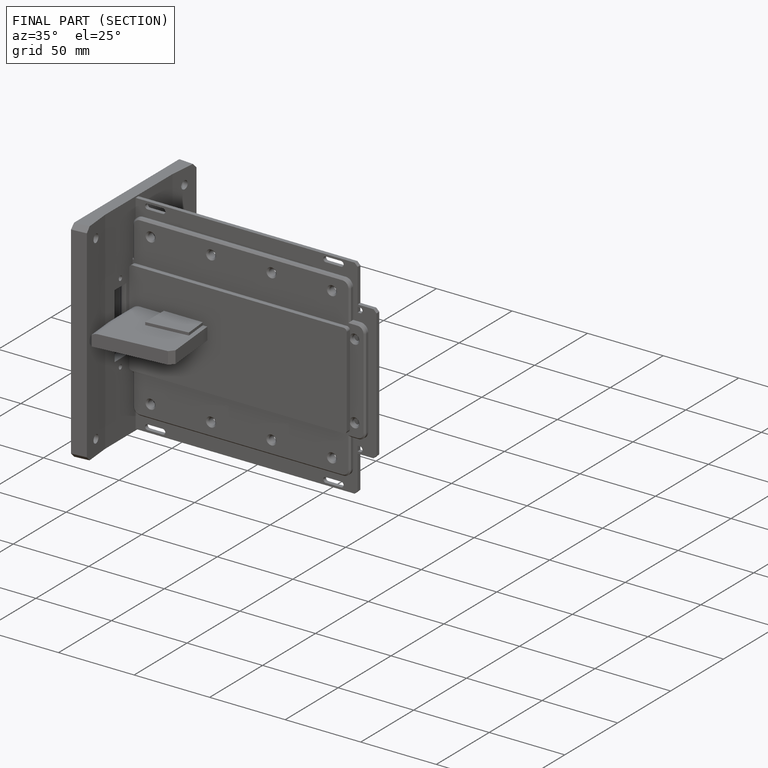
[diagram: finished part — half-section view (interior)]
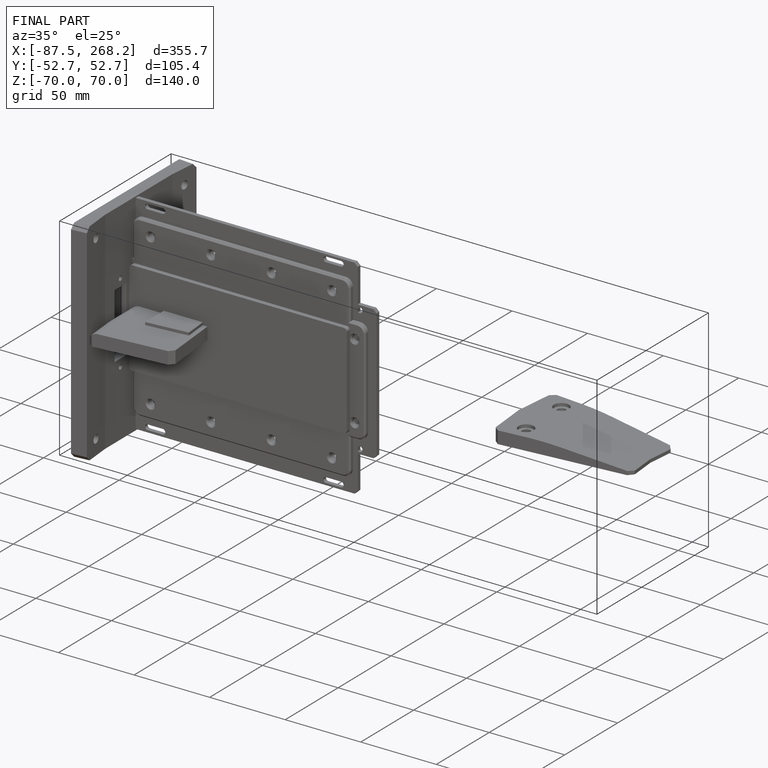
[diagram: finished part — iso view with bounding-box wireframe]
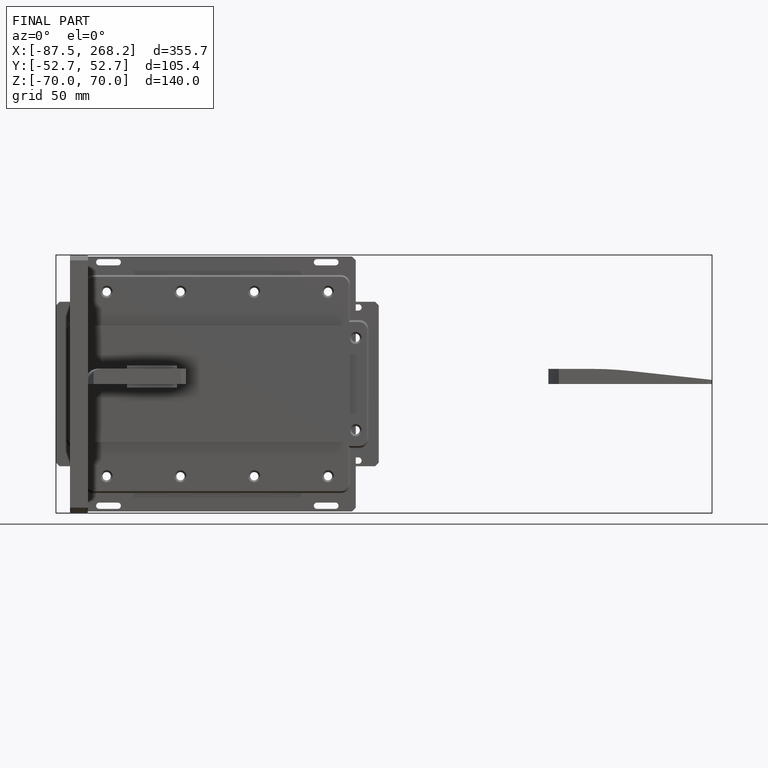
[diagram: finished part — front view with bounding-box wireframe]
